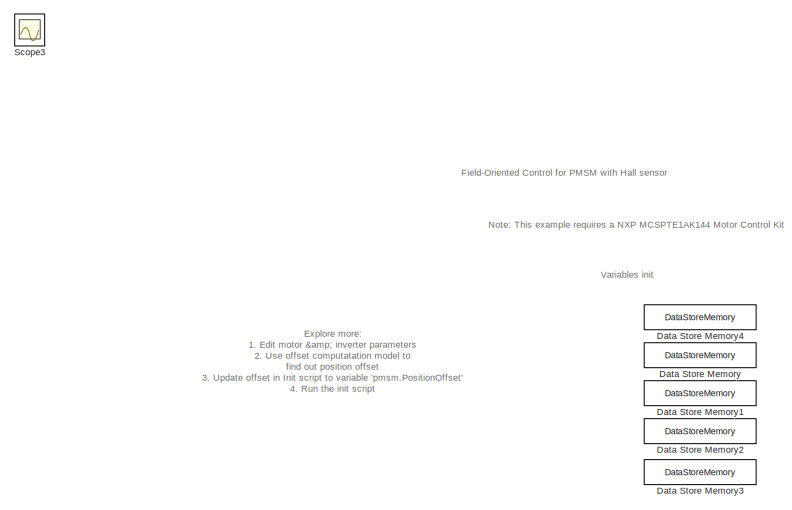
[diagram: root canvas - part 1/2, top left region]
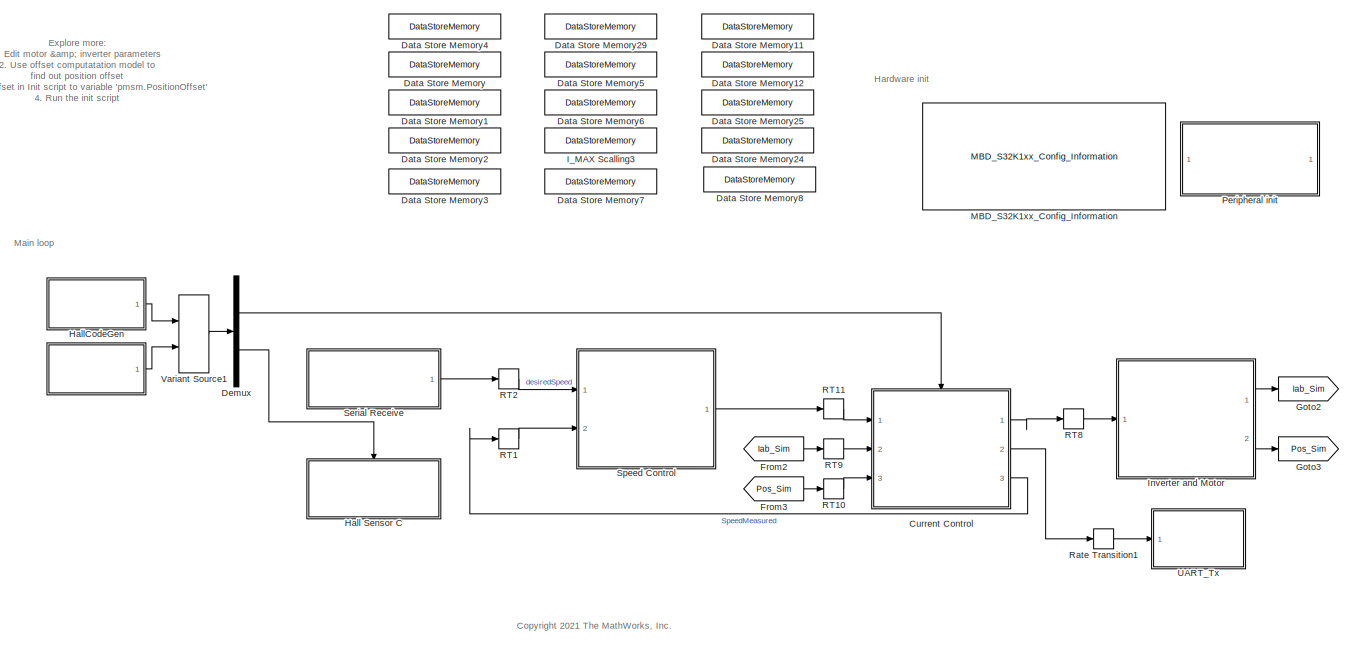
[diagram: root canvas - part 2/2, full width, middle band]
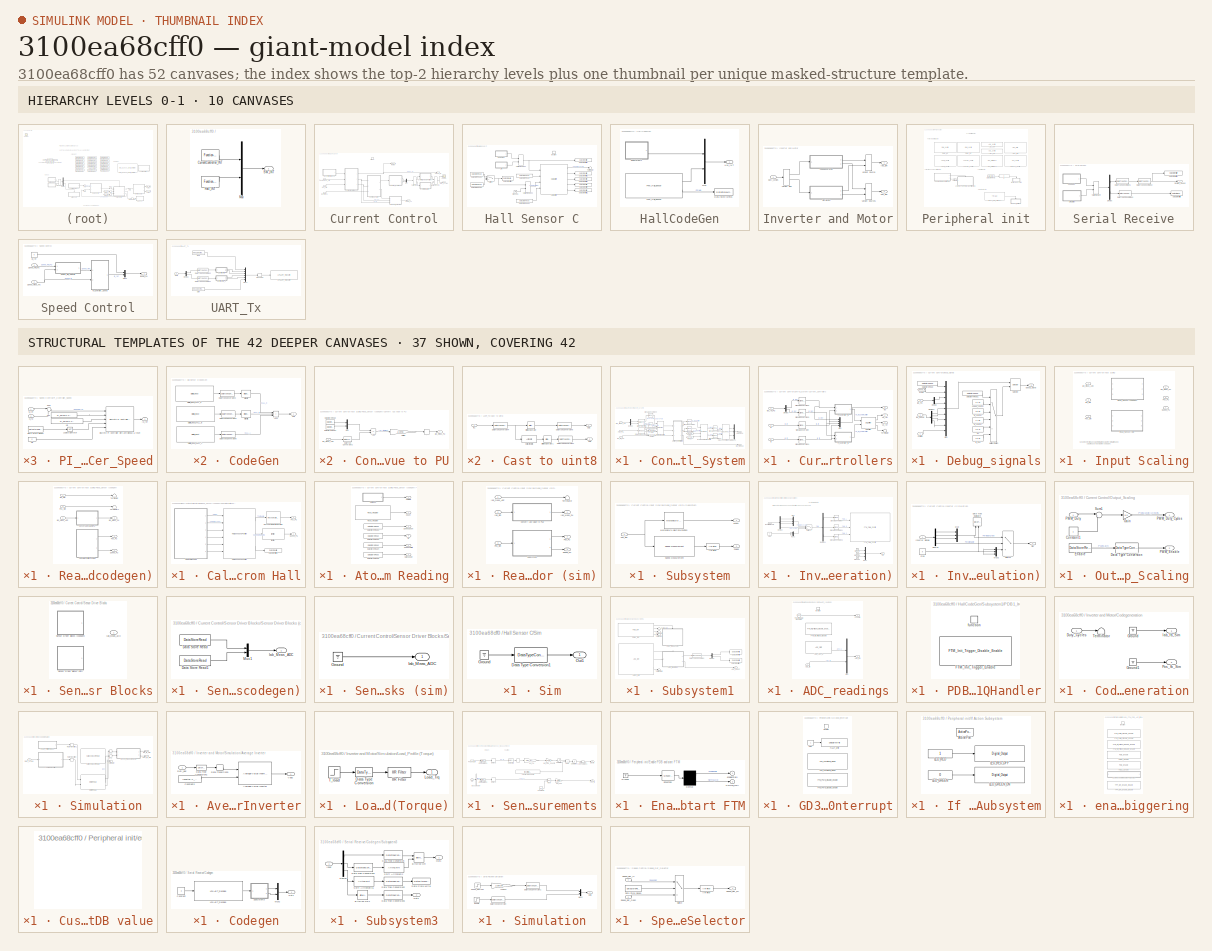
[diagram: thumbnail index - top-2 hierarchy levels (10 canvases) + 37 structural-template representatives of the remaining 42 canvases]
MODEL slx_3100ea68cff0
KIND model
CONFIG AbsTol = auto
CONFIG EnableMultiTasking = on
CONFIG FixedStep = auto
CONFIG InitFcn = mbd_s32k_consistency_checks(bdroot(gcs));
CONFIG MaxStep = auto
CONFIG MinStep = auto
CONFIG PreLoadFcn = mcb_pmsm_foc_hall_MCSPTE1AK144_data;
CONFIG RelTol = 1e-3
CONFIG SampleTimeConstraint = Unconstrained
CONFIG SolverName = FixedStepDiscrete
CONFIG StartTime = 0.0
CONFIG StopTime = 10
BLOCK [SubSystem]  
  Ports = [0, 1]
  RequestExecContextInheritance = off
BLOCK [Reference]  /CurrentController_INT  REF=simulink/Ports &
Subsystems/Function-Call
Generator
  Ports = [0, 1]
  SourceBlock = simulink/Ports &\nSubsystems/Function-Call\nGenerator
  SourceProductBaseCode = SL
  SourceType = Function-Call Generator
BLOCK [Reference]  /Hall_INT  REF=simulink/Ports &
Subsystems/Function-Call
Generator
  Ports = [0, 1]
  SourceBlock = simulink/Ports &\nSubsystems/Function-Call\nGenerator
  SourceProductBaseCode = SL
  SourceType = Function-Call Generator
BLOCK [Mux]  /Mux
  DisplayOption = bar
  Inputs = 2
  Ports = [2, 1]
BLOCK [Outport]  /SW_INT
BLOCK [SubSystem] Current Control
  Ports = [3, 3, 0, 1]
  RequestExecContextInheritance = off
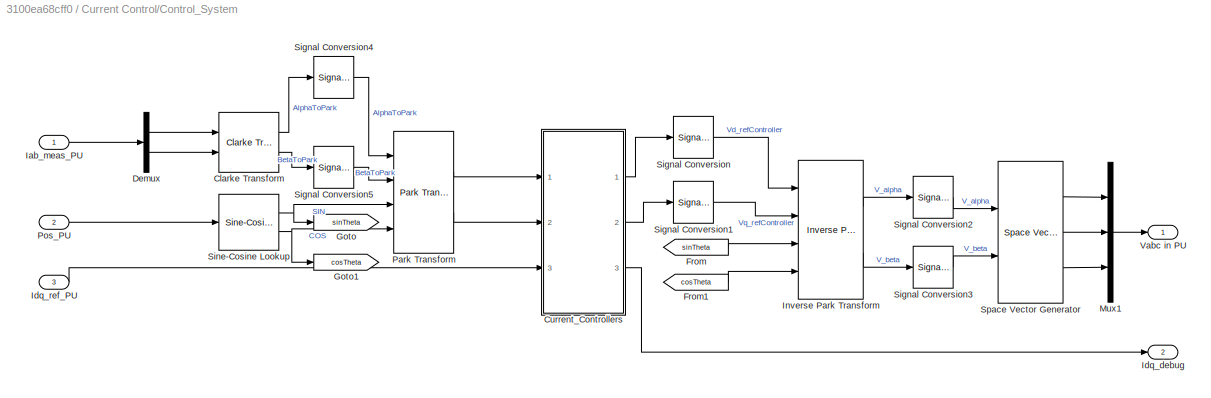
BLOCK [SubSystem] Current Control/Control_System
  Ports = [3, 2]
  Priority = 3
  RequestExecContextInheritance = off
BLOCK [Reference] Current Control/Control_System/Clarke Transform  REF=mcbcontrolslib/Clarke Transform
  Ports = [2, 2]
  SourceBlock = mcbcontrolslib/Clarke Transform
  SourceProductBaseCode = MT
  SourceType = Clarke Transform
BLOCK [SubSystem] Current Control/Control_System/Current_Controllers
  Ports = [3, 3]
  RequestExecContextInheritance = off
BLOCK [Reference] Current Control/Control_System/Current_Controllers/DQ Limiter  REF=mcbcontrolslib/DQ Limiter
  Ports = [2, 3]
  SourceBlock = mcbcontrolslib/DQ Limiter
  SourceProductBaseCode = MT
  SourceType = DQ Limiter
BLOCK [Demux] Current Control/Control_System/Current_Controllers/Demux
  Outputs = 2
  Ports = [1, 2]
BLOCK [Inport] Current Control/Control_System/Current_Controllers/Id
BLOCK [Outport] Current Control/Control_System/Current_Controllers/Idq
  Port = 3
  VectorParamsAs1DForOutWhenUnconnected = off
BLOCK [Inport] Current Control/Control_System/Current_Controllers/Idq_ref_PU
  Port = 3
BLOCK [Inport] Current Control/Control_System/Current_Controllers/Iq
  Port = 2
BLOCK [Mux] Current Control/Control_System/Current_Controllers/Mux
  DisplayOption = bar
  Ports = [4, 1]
BLOCK [SubSystem] Current Control/Control_System/Current_Controllers/PI_Controller_Id
  NameLocation = top
  Ports = [2, 1]
  RequestExecContextInheritance = off
BLOCK [DataStoreRead] Current Control/Control_System/Current_Controllers/PI_Controller_Id/Data Store Read1
  DataStoreName = Enable
  IndexOptions = Index vector (dialog)
  Indices = 1
  OutputSizes = 1
  Ports = [0, 1]
BLOCK [Reference] Current Control/Control_System/Current_Controllers/PI_Controller_Id/Discrete PI Controller with anti-windup & reset  REF=mcbcontrolslib/Discrete PI Controller 
with anti-windup & reset
  Ports = [5, 1]
  SourceBlock = mcbcontrolslib/Discrete PI Controller \nwith anti-windup & reset
  SourceProductBaseCode = MT
  SourceType = Discrete PI Controller with anti-windup and reset
BLOCK [Inport] Current Control/Control_System/Current_Controllers/PI_Controller_Id/I_fb
  Port = 2
BLOCK [Inport] Current Control/Control_System/Current_Controllers/PI_Controller_Id/I_ref
BLOCK [Constant] Current Control/Control_System/Current_Controllers/PI_Controller_Id/Ki
  OutDataTypeStr = dataType
  SampleTime = -1
  Value = PI_params.Ki_i*Ts
BLOCK [Constant] Current Control/Control_System/Current_Controllers/PI_Controller_Id/Ki1
  NameLocation = top
  OutDataTypeStr = dataType
  SampleTime = -1
  Value = 0
BLOCK [Constant] Current Control/Control_System/Current_Controllers/PI_Controller_Id/Kp
  NameLocation = top
  OutDataTypeStr = dataType
  SampleTime = -1
  Value = PI_params.Kp_i
BLOCK [Logic] Current Control/Control_System/Current_Controllers/PI_Controller_Id/Logical Operator
  AllPortsSameDT = off
  IconShape = distinctive
  Operator = NOT
  OutDataTypeStr = boolean
  Ports = [1, 1]
BLOCK [Sum] Current Control/Control_System/Current_Controllers/PI_Controller_Id/Sum
  AccumDataTypeStr = Inherit: Same as first input
  Inputs = |+-
  OutDataTypeStr = Inherit: Same as first input
  Ports = [2, 1]
BLOCK [Outport] Current Control/Control_System/Current_Controllers/PI_Controller_Id/V_ref
  VectorParamsAs1DForOutWhenUnconnected = off
BLOCK [SubSystem] Current Control/Control_System/Current_Controllers/PI_Controller_Iq
  NameLocation = top
  Ports = [2, 1]
  RequestExecContextInheritance = off
BLOCK [DataStoreRead] Current Control/Control_System/Current_Controllers/PI_Controller_Iq/Data Store Read1
  DataStoreName = Enable
  IndexOptions = Index vector (dialog)
  Indices = 1
  OutputSizes = 1
  Ports = [0, 1]
BLOCK [Reference] Current Control/Control_System/Current_Controllers/PI_Controller_Iq/Discrete PI Controller with anti-windup & reset  REF=mcbcontrolslib/Discrete PI Controller 
with anti-windup & reset
  Ports = [5, 1]
  SourceBlock = mcbcontrolslib/Discrete PI Controller \nwith anti-windup & reset
  SourceProductBaseCode = MT
  SourceType = Discrete PI Controller with anti-windup and reset
BLOCK [Inport] Current Control/Control_System/Current_Controllers/PI_Controller_Iq/I_fb
  Port = 2
BLOCK [Inport] Current Control/Control_System/Current_Controllers/PI_Controller_Iq/I_ref
BLOCK [Constant] Current Control/Control_System/Current_Controllers/PI_Controller_Iq/Ki
  OutDataTypeStr = dataType
  SampleTime = -1
  Value = PI_params.Ki_i*Ts
BLOCK [Constant] Current Control/Control_System/Current_Controllers/PI_Controller_Iq/Kp
  NameLocation = top
  OutDataTypeStr = dataType
  SampleTime = -1
  Value = PI_params.Kp_i
BLOCK [Constant] Current Control/Control_System/Current_Controllers/PI_Controller_Iq/Kp1
  NameLocation = top
  OutDataTypeStr = dataType
  SampleTime = -1
  Value = 0
BLOCK [Logic] Current Control/Control_System/Current_Controllers/PI_Controller_Iq/Logical Operator
  AllPortsSameDT = off
  IconShape = distinctive
  Operator = NOT
  OutDataTypeStr = boolean
  Ports = [1, 1]
BLOCK [Sum] Current Control/Control_System/Current_Controllers/PI_Controller_Iq/Sum
  AccumDataTypeStr = Inherit: Same as first input
  Inputs = |+-
  OutDataTypeStr = Inherit: Same as first input
  Ports = [2, 1]
BLOCK [Outport] Current Control/Control_System/Current_Controllers/PI_Controller_Iq/V_ref
  VectorParamsAs1DForOutWhenUnconnected = off
BLOCK [SignalConversion] Current Control/Control_System/Current_Controllers/Signal Conversion
  OverrideOpt = off
BLOCK [SignalConversion] Current Control/Control_System/Current_Controllers/Signal Conversion1
  OverrideOpt = off
BLOCK [SignalConversion] Current Control/Control_System/Current_Controllers/Signal Conversion2
  OverrideOpt = off
BLOCK [SignalConversion] Current Control/Control_System/Current_Controllers/Signal Conversion3
  OverrideOpt = off
BLOCK [Terminator] Current Control/Control_System/Current_Controllers/Terminator
BLOCK [Outport] Current Control/Control_System/Current_Controllers/Vd_ref
  VectorParamsAs1DForOutWhenUnconnected = off
BLOCK [Outport] Current Control/Control_System/Current_Controllers/Vq_ref
  Port = 2
  VectorParamsAs1DForOutWhenUnconnected = off
BLOCK [Demux] Current Control/Control_System/Demux
  Outputs = 2
  Ports = [1, 2]
BLOCK [From] Current Control/Control_System/From
  GotoTag = sinTheta
BLOCK [From] Current Control/Control_System/From1
  GotoTag = cosTheta
BLOCK [Goto] Current Control/Control_System/Goto
  GotoTag = sinTheta
BLOCK [Goto] Current Control/Control_System/Goto1
  GotoTag = cosTheta
BLOCK [Inport] Current Control/Control_System/Iab_meas_PU
BLOCK [Outport] Current Control/Control_System/Idq_debug
  Port = 2
  VectorParamsAs1DForOutWhenUnconnected = off
BLOCK [Inport] Current Control/Control_System/Idq_ref_PU
  Port = 3
BLOCK [Reference] Current Control/Control_System/Inverse Park Transform  REF=mcbcontrolslib/Inverse Park Transform
  Ports = [4, 2]
  SourceBlock = mcbcontrolslib/Inverse Park Transform
  SourceProductBaseCode = MT
  SourceType = Inverse Park Transform
BLOCK [Mux] Current Control/Control_System/Mux1
  DisplayOption = bar
  Inputs = 3
  Ports = [3, 1]
BLOCK [Reference] Current Control/Control_System/Park Transform  REF=mcbcontrolslib/Park Transform
  Ports = [4, 2]
  SourceBlock = mcbcontrolslib/Park Transform
  SourceProductBaseCode = MT
  SourceType = Park Transform
BLOCK [Inport] Current Control/Control_System/Pos_PU
  Port = 2
BLOCK [SignalConversion] Current Control/Control_System/Signal Conversion
  OverrideOpt = off
BLOCK [SignalConversion] Current Control/Control_System/Signal Conversion1
  OverrideOpt = off
BLOCK [SignalConversion] Current Control/Control_System/Signal Conversion2
  OverrideOpt = off
BLOCK [SignalConversion] Current Control/Control_System/Signal Conversion3
  OverrideOpt = off
BLOCK [SignalConversion] Current Control/Control_System/Signal Conversion4
  OverrideOpt = off
BLOCK [SignalConversion] Current Control/Control_System/Signal Conversion5
  OverrideOpt = off
BLOCK [Reference] Current Control/Control_System/Sine-Cosine Lookup  REF=mcbcontrolslib/Sine-Cosine Lookup
  Ports = [1, 2]
  SourceBlock = mcbcontrolslib/Sine-Cosine Lookup
  SourceProductBaseCode = MT
  SourceType = Sine-Cosine Lookup
BLOCK [Reference] Current Control/Control_System/Space Vector Generator  REF=mcbcontrolslib/Space Vector Generator
  Ports = [2, 3]
  SourceBlock = mcbcontrolslib/Space Vector Generator
  SourceProductBaseCode = MT
  SourceType = Space Vector Generator
BLOCK [Outport] Current Control/Control_System/Vabc in PU
  VectorParamsAs1DForOutWhenUnconnected = off
BLOCK [SubSystem] Current Control/Debug_signals
  Ports = [3, 1]
  RequestExecContextInheritance = off
BLOCK [DataStoreRead] Current Control/Debug_signals/Data Store Read
  DataStoreName = DesiredSpeed
  IndexOptions = Index vector (dialog)
  Indices = 1
  OutputSizes = 1
  Ports = [0, 1]
BLOCK [DataStoreRead] Current Control/Debug_signals/Data Store Read1
  DataStoreName = Debug_Signal
  IndexOptions = Index vector (dialog)
  Indices = 1
  OutputSizes = 1
  Ports = [0, 1]
BLOCK [Outport] Current Control/Debug_signals/Debug_signal
BLOCK [Demux] Current Control/Debug_signals/Demux
  Outputs = 2
  Ports = [1, 2]
BLOCK [Demux] Current Control/Debug_signals/Demux1
  Ports = [1, 4]
BLOCK [From] Current Control/Debug_signals/From
  GotoTag = Speed_fb
  TagVisibility = global
BLOCK [Constant] Current Control/Debug_signals/Ia_Pos
  OutDataTypeStr = uint16
  SampleTime = -1
  Value = [3 9]
BLOCK [Constant] Current Control/Debug_signals/Iab
  OutDataTypeStr = uint16
  SampleTime = -1
  Value = [3 4]
BLOCK [Inport] Current Control/Debug_signals/Iab_PU
  Port = 3
BLOCK [Constant] Current Control/Debug_signals/Id_control
  OutDataTypeStr = uint16
  SampleTime = -1
  Value = [5 6]
BLOCK [Inport] Current Control/Debug_signals/Idq_debug
BLOCK [Constant] Current Control/Debug_signals/Iq_control
  OutDataTypeStr = uint16
  SampleTime = -1
  Value = [7 8]
BLOCK [MultiPortSwitch] Current Control/Debug_signals/Multiport Switch
  DiagnosticForDefault = Warning
  InputSameDT = off
  Inputs = 5
  OutDataTypeStr = uint16
  Ports = [6, 1]
  RndMeth = Simplest
  SaturateOnIntegerOverflow = off
BLOCK [Mux] Current Control/Debug_signals/Mux
  DisplayOption = bar
  Inputs = 9
  Ports = [9, 1]
BLOCK [Inport] Current Control/Debug_signals/Position
  Port = 2
BLOCK [Selector] Current Control/Debug_signals/Selector
  IndexOptions = Index vector (port)
  Indices = [1 3]
  InputPortWidth = 9
  OutputSizes = 1
  Ports = [2, 1]
BLOCK [Constant] Current Control/Debug_signals/speed_control
  OutDataTypeStr = uint16
  SampleTime = -1
  Value = [1 2]
BLOCK [Outport] Current Control/Duty_Cycles
  InitialOutput = 0
  VectorParamsAs1DForOutWhenUnconnected = off
BLOCK [Inport] Current Control/Feedbacks_sim
  Port = 2
BLOCK [Goto] Current Control/Goto1
  GotoTag = Speed_fb
  TagVisibility = global
BLOCK [Inport] Current Control/Idq_ref_PU
BLOCK [SubSystem] Current Control/Input Scaling
  Ports = [3, 3]
  Priority = 2
  PropagateVariantConditions = on
  RequestExecContextInheritance = off
  Variant = on
  VariantControl = Variant1
  VariantControlMode = sim codegen switching
BLOCK [Outport] Current Control/Input Scaling/Iab_Meas_PU
  Port = 2
  VectorParamsAs1DForOutWhenUnconnected = off
BLOCK [Inport] Current Control/Input Scaling/Iab_Sim
  Port = 2
BLOCK [Inport] Current Control/Input Scaling/Iab_meas_ADC
BLOCK [Outport] Current Control/Input Scaling/Pos_PU
  Port = 3
  VectorParamsAs1DForOutWhenUnconnected = off
BLOCK [Inport] Current Control/Input Scaling/Pos_Sim
  Port = 3
BLOCK [SubSystem] Current Control/Input Scaling/Read_Sensor (codegen)
  Ports = [3, 3]
  RequestExecContextInheritance = off
  VariantControl = (codegen)
BLOCK [SubSystem] Current Control/Input Scaling/Read_Sensor (codegen)/Calculate Position from Hall
  Ports = [0, 2]
  RequestExecContextInheritance = off
BLOCK [SubSystem] Current Control/Input Scaling/Read_Sensor (codegen)/Calculate Position from Hall/Atomic Hall Reading
  Ports = [0, 6]
  RequestExecContextInheritance = off
  TreatAsAtomicUnit = on
BLOCK [Outport] Current Control/Input Scaling/Read_Sensor (codegen)/Calculate Position from Hall/Atomic Hall Reading/Count
  Port = 2
BLOCK [DataStoreRead] Current Control/Input Scaling/Read_Sensor (codegen)/Calculate Position from Hall/Atomic Hall Reading/Data Store Read2
  DataStoreName = GlobalSpeedCount
  IndexOptions = Index vector (dialog)
  Indices = 1
  OutputSizes = 1
  Ports = [0, 1]
BLOCK [DataStoreRead] Current Control/Input Scaling/Read_Sensor (codegen)/Calculate Position from Hall/Atomic Hall Reading/Data Store Read3
  DataStoreName = GlobalDirection
  IndexOptions = Index vector (dialog)
  Indices = 1
  OutputSizes = 1
  Ports = [0, 1]
BLOCK [DataStoreRead] Current Control/Input Scaling/Read_Sensor (codegen)/Calculate Position from Hall/Atomic Hall Reading/Data Store Read4
  DataStoreName = GlobalSpeedValidity
  IndexOptions = Index vector (dialog)
  Indices = 1
  OutputSizes = 1
  Ports = [0, 1]
BLOCK [DataStoreRead] Current Control/Input Scaling/Read_Sensor (codegen)/Calculate Position from Hall/Atomic Hall Reading/Data Store Read5
  DataStoreName = HallStateChangeFlag
  IndexOptions = Index vector (dialog)
  Indices = 1
  OutputSizes = 1
  Ports = [0, 1]
  Priority = 1
BLOCK [Outport] Current Control/Input Scaling/Read_Sensor (codegen)/Calculate Position from Hall/Atomic Hall Reading/Dir
  Port = 4
BLOCK [SubSystem] Current Control/Input Scaling/Read_Sensor (codegen)/Calculate Position from Hall/Atomic Hall Reading/Hall Read
  Ports = [0, 1]
  RequestExecContextInheritance = off
BLOCK [Sum] Current Control/Input Scaling/Read_Sensor (codegen)/Calculate Position from Hall/Atomic Hall Reading/Hall Read/Add1
  IconShape = rectangular
  Inputs = +++
  OutDataTypeStr = Inherit: Inherit via back propagation
  Ports = [3, 1]
BLOCK [Reference] Current Control/Input Scaling/Read_Sensor (codegen)/Calculate Position from Hall/Atomic Hall Reading/Hall Read/Bit Shift  REF=hdlsllib/Logic and Bit
Operations/Bit Shift
  Ports = [1, 1]
  SourceBlock = hdlsllib/Logic and Bit\nOperations/Bit Shift
  SourceProductBaseCode = SL
  SourceType = Bit Shift
BLOCK [Reference] Current Control/Input Scaling/Read_Sensor (codegen)/Calculate Position from Hall/Atomic Hall Reading/Hall Read/Bit Shift1  REF=hdlsllib/Logic and Bit
Operations/Bit Shift
  Ports = [1, 1]
  SourceBlock = hdlsllib/Logic and Bit\nOperations/Bit Shift
  SourceProductBaseCode = SL
  SourceType = Bit Shift
BLOCK [DataTypeConversion] Current Control/Input Scaling/Read_Sensor (codegen)/Calculate Position from Hall/Atomic Hall Reading/Hall Read/Data Type Conversion2
  OutDataTypeStr = uint32
  RndMeth = Floor
  SaturateOnIntegerOverflow = off
BLOCK [DataTypeConversion] Current Control/Input Scaling/Read_Sensor (codegen)/Calculate Position from Hall/Atomic Hall Reading/Hall Read/Data Type Conversion3
  OutDataTypeStr = uint32
  RndMeth = Floor
  SaturateOnIntegerOverflow = off
BLOCK [DataTypeConversion] Current Control/Input Scaling/Read_Sensor (codegen)/Calculate Position from Hall/Atomic Hall Reading/Hall Read/Data Type Conversion6
  OutDataTypeStr = uint32
  RndMeth = Floor
  SaturateOnIntegerOverflow = off
BLOCK [Reference] Current Control/Input Scaling/Read_Sensor (codegen)/Calculate Position from Hall/Atomic Hall Reading/Hall Read/Digital_Input_HALL_A  REF=mbd_s32k1xx_ec_toolbox/GPIO Blocks/Digital_Input
  Ports = [0, 1]
  SourceBlock = mbd_s32k1xx_ec_toolbox/GPIO Blocks/Digital_Input
  SourceType = gpio_s32k_input
BLOCK [Reference] Current Control/Input Scaling/Read_Sensor (codegen)/Calculate Position from Hall/Atomic Hall Reading/Hall Read/Digital_Input_HALL_B  REF=mbd_s32k1xx_ec_toolbox/GPIO Blocks/Digital_Input
  Ports = [0, 1]
  SourceBlock = mbd_s32k1xx_ec_toolbox/GPIO Blocks/Digital_Input
  SourceType = gpio_s32k_input
BLOCK [Reference] Current Control/Input Scaling/Read_Sensor (codegen)/Calculate Position from Hall/Atomic Hall Reading/Hall Read/Digital_Input_HALL_C  REF=mbd_s32k1xx_ec_toolbox/GPIO Blocks/Digital_Input
  Ports = [0, 1]
  SourceBlock = mbd_s32k1xx_ec_toolbox/GPIO Blocks/Digital_Input
  SourceType = gpio_s32k_input
BLOCK [Outport] Current Control/Input Scaling/Read_Sensor (codegen)/Calculate Position from Hall/Atomic Hall Reading/Hall Read/Out1
BLOCK [Outport] Current Control/Input Scaling/Read_Sensor (codegen)/Calculate Position from Hall/Atomic Hall Reading/HallState
BLOCK [Outport] Current Control/Input Scaling/Read_Sensor (codegen)/Calculate Position from Hall/Atomic Hall Reading/Hallchange
  Port = 6
BLOCK [Reference] Current Control/Input Scaling/Read_Sensor (codegen)/Calculate Position from Hall/Atomic Hall Reading/Read_Register  REF=mbd_s32k1xx_ec_toolbox/Utility Blocks/Read_Register
  Ports = [0, 1]
  SourceBlock = mbd_s32k1xx_ec_toolbox/Utility Blocks/Read_Register
  SourceType = register_s32k_read
BLOCK [Outport] Current Control/Input Scaling/Read_Sensor (codegen)/Calculate Position from Hall/Atomic Hall Reading/SpeedCount
  Port = 3
BLOCK [Outport] Current Control/Input Scaling/Read_Sensor (codegen)/Calculate Position from Hall/Atomic Hall Reading/SpeedValidity
  Port = 5
BLOCK [DataStoreWrite] Current Control/Input Scaling/Read_Sensor (codegen)/Calculate Position from Hall/Data Store Write2
  DataStoreName = HallStateChangeFlag
  IndexOptions = Index vector (dialog)
  Indices = 1
  OutputSizes = 1
  Ports = [1]
  Priority = 2
BLOCK [Reference] Current Control/Input Scaling/Read_Sensor (codegen)/Calculate Position from Hall/Hall Speed and Position  REF=mcbpositiondecoderlib/Hall Speed and Position
  Ports = [6, 3]
  SourceBlock = mcbpositiondecoderlib/Hall Speed and Position
  SourceProductBaseCode = MT
  SourceType = Hall Speed and Position
BLOCK [Reference] Current Control/Input Scaling/Read_Sensor (codegen)/Calculate Position from Hall/IIR Filter  REF=mcbcontrolslib/IIR Filter
  Ports = [1, 1]
  SourceBlock = mcbcontrolslib/IIR Filter
  SourceProductBaseCode = MT
  SourceType = IIR Filter
BLOCK [Reference] Current Control/Input Scaling/Read_Sensor (codegen)/Calculate Position from Hall/Mechanical to Electrical Position  REF=mcbpositiondecoderlib/Mechanical to Electrical Position
  Ports = [1, 1]
  SourceBlock = mcbpositiondecoderlib/Mechanical to Electrical Position
  SourceProductBaseCode = MT
  SourceType = Mechanical to Electrical Position
BLOCK [Outport] Current Control/Input Scaling/Read_Sensor (codegen)/Calculate Position from Hall/Pos_PU
  InitialOutput = 0
  VectorParamsAs1DForOutWhenUnconnected = off
BLOCK [Outport] Current Control/Input Scaling/Read_Sensor (codegen)/Calculate Position from Hall/Speed_PU
  InitialOutput = 0
  Port = 2
  VectorParamsAs1DForOutWhenUnconnected = off
BLOCK [SubSystem] Current Control/Input Scaling/Read_Sensor (codegen)/Convert ADC value to PU
  Ports = [1, 1]
  RequestExecContextInheritance = off
BLOCK [UnaryMinus] Current Control/Input Scaling/Read_Sensor (codegen)/Convert ADC value to PU/.
BLOCK [Sum] Current Control/Input Scaling/Read_Sensor (codegen)/Convert ADC value to PU/Add
  IconShape = rectangular
  Inputs = -+
  Ports = [2, 1]
BLOCK [DataStoreRead] Current Control/Input Scaling/Read_Sensor (codegen)/Convert ADC value to PU/Data Store Read
  DataStoreName = IaOffset
  IndexOptions = Index vector (dialog)
  Indices = 1
  OutputSizes = 1
  Ports = [0, 1]
BLOCK [DataStoreRead] Current Control/Input Scaling/Read_Sensor (codegen)/Convert ADC value to PU/Data Store Read1
  DataStoreName = IbOffset
  IndexOptions = Index vector (dialog)
  Indices = 1
  OutputSizes = 1
  Ports = [0, 1]
BLOCK [DataTypeConversion] Current Control/Input Scaling/Read_Sensor (codegen)/Convert ADC value to PU/Data Type Conversion2
  OutDataTypeStr = dataType
  RndMeth = Simplest
  SaturateOnIntegerOverflow = off
BLOCK [Inport] Current Control/Input Scaling/Read_Sensor (codegen)/Convert ADC value to PU/Iab_meas_ADC
BLOCK [Outport] Current Control/Input Scaling/Read_Sensor (codegen)/Convert ADC value to PU/Iab_meas_PU
  InitialOutput = 0
  VectorParamsAs1DForOutWhenUnconnected = off
BLOCK [Gain] Current Control/Input Scaling/Read_Sensor (codegen)/Convert ADC value to PU/Multiply
  Gain = 1/2048
  RndMeth = Simplest
BLOCK [Mux] Current Control/Input Scaling/Read_Sensor (codegen)/Convert ADC value to PU/Mux
  DisplayOption = bar
  Inputs = 2
  Ports = [2, 1]
BLOCK [Outport] Current Control/Input Scaling/Read_Sensor (codegen)/Iab_Meas_PU
  VectorParamsAs1DForOutWhenUnconnected = off
BLOCK [Inport] Current Control/Input Scaling/Read_Sensor (codegen)/Iab_Sim
  Port = 2
BLOCK [Inport] Current Control/Input Scaling/Read_Sensor (codegen)/Iab_meas_ADC
BLOCK [Outport] Current Control/Input Scaling/Read_Sensor (codegen)/Pos_PU
  Port = 2
  VectorParamsAs1DForOutWhenUnconnected = off
BLOCK [Inport] Current Control/Input Scaling/Read_Sensor (codegen)/Pos_Sim
  Port = 3
BLOCK [Outport] Current Control/Input Scaling/Read_Sensor (codegen)/Speed_PU
  Port = 3
  VectorParamsAs1DForOutWhenUnconnected = off
BLOCK [Terminator] Current Control/Input Scaling/Read_Sensor (codegen)/Terminator
BLOCK [Terminator] Current Control/Input Scaling/Read_Sensor (codegen)/Terminator1
BLOCK [SubSystem] Current Control/Input Scaling/Read_Sensor (sim)
  Ports = [3, 3]
  RequestExecContextInheritance = off
  VariantControl = (sim)
BLOCK [SubSystem] Current Control/Input Scaling/Read_Sensor (sim)/Convert ADC value to PU2
  Ports = [1, 1]
  RequestExecContextInheritance = off
BLOCK [UnaryMinus] Current Control/Input Scaling/Read_Sensor (sim)/Convert ADC value to PU2/.1
BLOCK [Sum] Current Control/Input Scaling/Read_Sensor (sim)/Convert ADC value to PU2/Add
  IconShape = rectangular
  Inputs = -+
  OutDataTypeStr = int32
  Ports = [2, 1]
  RndMeth = Simplest
BLOCK [DataStoreRead] Current Control/Input Scaling/Read_Sensor (sim)/Convert ADC value to PU2/Data Store Read
  DataStoreName = IaOffset
  IndexOptions = Index vector (dialog)
  Indices = 1
  OutputSizes = 1
  Ports = [0, 1]
BLOCK [DataStoreRead] Current Control/Input Scaling/Read_Sensor (sim)/Convert ADC value to PU2/Data Store Read1
  DataStoreName = IbOffset
  IndexOptions = Index vector (dialog)
  Indices = 1
  OutputSizes = 1
  Ports = [0, 1]
BLOCK [DataTypeConversion] Current Control/Input Scaling/Read_Sensor (sim)/Convert ADC value to PU2/Data Type Conversion1
  OutDataTypeStr = dataType
  RndMeth = Simplest
  SaturateOnIntegerOverflow = off
BLOCK [Inport] Current Control/Input Scaling/Read_Sensor (sim)/Convert ADC value to PU2/Iab_meas_ADC
BLOCK [Outport] Current Control/Input Scaling/Read_Sensor (sim)/Convert ADC value to PU2/Iab_meas_PU
  InitialOutput = 0
  VectorParamsAs1DForOutWhenUnconnected = off
BLOCK [Gain] Current Control/Input Scaling/Read_Sensor (sim)/Convert ADC value to PU2/Multiply
  Gain = 1/2048
  OutDataTypeStr = dataType
  RndMeth = Simplest
BLOCK [Mux] Current Control/Input Scaling/Read_Sensor (sim)/Convert ADC value to PU2/Mux
  DisplayOption = bar
  Inputs = 2
  Ports = [2, 1]
BLOCK [Outport] Current Control/Input Scaling/Read_Sensor (sim)/Iab_Meas_PU
  VectorParamsAs1DForOutWhenUnconnected = off
BLOCK [Inport] Current Control/Input Scaling/Read_Sensor (sim)/Iab_Sim
  Port = 2
BLOCK [Inport] Current Control/Input Scaling/Read_Sensor (sim)/Iab_meas_ADC
  OutDataTypeStr = uint16
BLOCK [Outport] Current Control/Input Scaling/Read_Sensor (sim)/Pos_PU
  Port = 2
  VectorParamsAs1DForOutWhenUnconnected = off
BLOCK [Inport] Current Control/Input Scaling/Read_Sensor (sim)/Pos_Sim
  Port = 3
BLOCK [Outport] Current Control/Input Scaling/Read_Sensor (sim)/Speed_PU
  Port = 3
  VectorParamsAs1DForOutWhenUnconnected = off
BLOCK [SubSystem] Current Control/Input Scaling/Read_Sensor (sim)/Subsystem
  Ports = [1, 2]
  RequestExecContextInheritance = off
BLOCK [Reference] Current Control/Input Scaling/Read_Sensor (sim)/Subsystem/IIR Filter  REF=mcbcontrolslib/IIR Filter
  Ports = [1, 1]
  SourceBlock = mcbcontrolslib/IIR Filter
  SourceProductBaseCode = MT
  SourceType = IIR Filter
BLOCK [Reference] Current Control/Input Scaling/Read_Sensor (sim)/Subsystem/Mechanical to Electrical Position  REF=mcbpositiondecoderlib/Mechanical to Electrical Position
  Ports = [1, 1]
  SourceBlock = mcbpositiondecoderlib/Mechanical to Electrical Position
  SourceProductBaseCode = MT
  SourceType = Mechanical to Electrical Position
BLOCK [Inport] Current Control/Input Scaling/Read_Sensor (sim)/Subsystem/Pos_Sim
BLOCK [Outport] Current Control/Input Scaling/Read_Sensor (sim)/Subsystem/Speed
  Port = 2
BLOCK [Reference] Current Control/Input Scaling/Read_Sensor (sim)/Subsystem/Speed Measurement  REF=mcbpositiondecoderlib/Speed Measurement
  Ports = [1, 1]
  SourceBlock = mcbpositiondecoderlib/Speed Measurement
  SourceProductBaseCode = MT
  SourceType = Speed Measurement
BLOCK [Outport] Current Control/Input Scaling/Read_Sensor (sim)/Subsystem/Theta
BLOCK [Terminator] Current Control/Input Scaling/Read_Sensor (sim)/Terminator
BLOCK [Outport] Current Control/Input Scaling/Speed_PU
  VectorParamsAs1DForOutWhenUnconnected = off
BLOCK [SubSystem] Current Control/Inverter (Code Generation)
  Ports = [1, 1]
  Priority = 5
  RequestExecContextInheritance = off
BLOCK [Demux] Current Control/Inverter (Code Generation)/Demux
  Ports = [1, 4]
BLOCK [Demux] Current Control/Inverter (Code Generation)/Demux1
  Outputs = 3
  Ports = [1, 3]
BLOCK [Reference] Current Control/Inverter (Code Generation)/FTM_PWM_Config  REF=mbd_s32k1xx_ec_toolbox/Motor Control Blocks/FTM Blocks/FTM_PWM_Config
  Ports = [3]
  SourceBlock = mbd_s32k1xx_ec_toolbox/Motor Control Blocks/FTM Blocks/FTM_PWM_Config
  SourceType = FTM_s32k_pwm_config_block
BLOCK [Ground] Current Control/Inverter (Code Generation)/Ground
BLOCK [Ground] Current Control/Inverter (Code Generation)/Ground1
BLOCK [Ground] Current Control/Inverter (Code Generation)/Ground2
BLOCK [Inport] Current Control/Inverter (Code Generation)/Inverter Signals
BLOCK [Mux] Current Control/Inverter (Code Generation)/Mux
  DisplayOption = bar
  Inputs = 3
  Ports = [3, 1]
BLOCK [Mux] Current Control/Inverter (Code Generation)/Mux1
  DisplayOption = bar
  Inputs = 3
  Ports = [3, 1]
BLOCK [Mux] Current Control/Inverter (Code Generation)/Mux2
  DisplayOption = bar
  Inputs = 3
  Ports = [3, 1]
BLOCK [SignalConversion] Current Control/Inverter (Code Generation)/Signal Conversion
  OverrideOpt = off
BLOCK [SignalConversion] Current Control/Inverter (Code Generation)/Signal Conversion1
  OverrideOpt = off
BLOCK [SignalConversion] Current Control/Inverter (Code Generation)/Signal Conversion2
  OverrideOpt = off
BLOCK [Outport] Current Control/Inverter (Code Generation)/Sim
  VectorParamsAs1DForOutWhenUnconnected = off
BLOCK [Switch] Current Control/Inverter (Code Generation)/Switch1
  InputSameDT = off
  SaturateOnIntegerOverflow = off
  Threshold = 0.5
BLOCK [Constant] Current Control/Inverter (Code Generation)/stop
  OutDataTypeStr = Inherit: Inherit via back propagation
  Value = 0
BLOCK [SubSystem] Current Control/Inverter (Simulation)
  Ports = [1, 1]
  RequestExecContextInheritance = off
BLOCK [DataTypeDuplicate] Current Control/Inverter (Simulation)/Data Type Duplicate
  Ports = [2]
BLOCK [Demux] Current Control/Inverter (Simulation)/Demux
  Ports = [1, 4]
BLOCK [Inport] Current Control/Inverter (Simulation)/Inverter Signals
BLOCK [Mux] Current Control/Inverter (Simulation)/Mux
  DisplayOption = bar
  Inputs = 3
  Ports = [3, 1]
BLOCK [Mux] Current Control/Inverter (Simulation)/Mux2
  DisplayOption = bar
  Inputs = 3
  Ports = [3, 1]
BLOCK [Outport] Current Control/Inverter (Simulation)/Sim
  VectorParamsAs1DForOutWhenUnconnected = off
BLOCK [Switch] Current Control/Inverter (Simulation)/Switch1
  InputSameDT = off
  RndMeth = Simplest
  SaturateOnIntegerOverflow = off
  Threshold = 0.5
BLOCK [Constant] Current Control/Inverter (Simulation)/stop
  OutDataTypeStr = Inherit: Inherit via back propagation
  Value = 0
BLOCK [Mux] Current Control/Mux
  DisplayOption = bar
  Inputs = 2
  Ports = [2, 1]
BLOCK [SubSystem] Current Control/Output_Scaling
  Ports = [1, 2]
  Priority = 4
  RequestExecContextInheritance = off
BLOCK [Constant] Current Control/Output_Scaling/Constant1
  OutDataTypeStr = Inherit: Inherit via back propagation
BLOCK [DataTypeConversion] Current Control/Output_Scaling/Data Type Conversion
  OutDataTypeStr = dataType
  RndMeth = Floor
  SaturateOnIntegerOverflow = off
BLOCK [DataStoreRead] Current Control/Output_Scaling/Enable
  DataStoreName = Enable
  IndexOptions = Index vector (dialog)
  Indices = 1
  OutputSizes = 1
  Ports = [0, 1]
BLOCK [Gain] Current Control/Output_Scaling/Gain
  Gain = 0.5
  OutDataTypeStr = Inherit: Inherit via back propagation
  RndMeth = Simplest
BLOCK [Inport] Current Control/Output_Scaling/PWM_Duty
BLOCK [Outport] Current Control/Output_Scaling/PWM_Duty_Cycles
BLOCK [Outport] Current Control/Output_Scaling/PWM_Enable
  Port = 2
BLOCK [Sum] Current Control/Output_Scaling/Sum1
  AccumDataTypeStr = Inherit: Same as first input
  Inputs = |++
  Ports = [2, 1]
  RndMeth = Simplest
BLOCK [Inport] Current Control/Pos_Sim
  Port = 3
BLOCK [Scope] Current Control/Scope
  Floating = off
  NumInputPorts = 1
  Ports = [1]
  ScopeSpecificationString = Simulink.scopes.TimeScopeBlockCfg('CurrentConfiguration', extmgr.ConfigurationSet(extmgr.Configuration('Core','General UI',true),extmgr.Configuration('Core','Source UI',true),extmgr.Configuration('Sources','WiredSimulink',true,'DataLoggingVariableName','ScopeData4'),extmgr.Configuration('Visuals','Time Domain',true,'SerializedDisplays',{struct('MinYLimReal','0.10795','MaxYLimReal','0.94231','YLabe...<+1902ch>
BLOCK [SubSystem] Current Control/Sensor Driver Blocks
  Ports = [0, 1]
  RequestExecContextInheritance = off
  Variant = on
  VariantControlMode = sim codegen switching
BLOCK [Outport] Current Control/Sensor Driver Blocks/Iab_Meas_ADC
BLOCK [SubSystem] Current Control/Sensor Driver Blocks/Sensor Driver Blocks (codegen)
  Ports = [0, 1]
  RequestExecContextInheritance = off
  VariantControl = (codegen)
BLOCK [DataStoreRead] Current Control/Sensor Driver Blocks/Sensor Driver Blocks (codegen)/Data Store Read
  DataStoreName = ADC_A
  IndexOptions = Index vector (dialog)
  Indices = 1
  OutputSizes = 1
  Ports = [0, 1]
BLOCK [DataStoreRead] Current Control/Sensor Driver Blocks/Sensor Driver Blocks (codegen)/Data Store Read1
  DataStoreName = ADC_B
  IndexOptions = Index vector (dialog)
  Indices = 1
  OutputSizes = 1
  Ports = [0, 1]
BLOCK [Outport] Current Control/Sensor Driver Blocks/Sensor Driver Blocks (codegen)/Iab_Meas_ADC
BLOCK [Mux] Current Control/Sensor Driver Blocks/Sensor Driver Blocks (codegen)/Mux1
  DisplayOption = bar
  Inputs = 2
  Ports = [2, 1]
BLOCK [SubSystem] Current Control/Sensor Driver Blocks/Sensor Driver Blocks (sim)
  Ports = [0, 1]
  RequestExecContextInheritance = off
  VariantControl = (sim)
BLOCK [Ground] Current Control/Sensor Driver Blocks/Sensor Driver Blocks (sim)/Ground
BLOCK [Outport] Current Control/Sensor Driver Blocks/Sensor Driver Blocks (sim)/Iab_Meas_ADC
BLOCK [Outport] Current Control/Speed_fb
  InitialOutput = 0
  Port = 3
  VectorParamsAs1DForOutWhenUnconnected = off
BLOCK [TriggerPort] Current Control/Trigger
  Ports = []
  StatesWhenEnabling = held
  TriggerType = function-call
  VariantControl = Variant
BLOCK [Outport] Current Control/UART_TX
  Port = 2
BLOCK [VariantSink] Current Control/Variant Sink
  Ports = [1, 2]
  VariantControlMode = sim codegen switching
BLOCK [VariantSource] Current Control/Variant Source
  Ports = [2, 1]
  VariantControlMode = sim codegen switching
BLOCK [DataStoreMemory] Data Store Memory
  DataStoreName = HallStateChangeFlag
  OutDataTypeStr = uint16
  ShowAdditionalParam = off
BLOCK [DataStoreMemory] Data Store Memory1
  DataStoreName = GlobalSpeedCount
  OutDataTypeStr = uint16
  ShowAdditionalParam = off
BLOCK [DataStoreMemory] Data Store Memory11
  DataStoreName = ADC_A
  ShowAdditionalParam = off
BLOCK [DataStoreMemory] Data Store Memory12
  DataStoreName = ADC_B
  ShowAdditionalParam = off
BLOCK [DataStoreMemory] Data Store Memory2
  DataStoreName = GlobalSpeedValidity
  OutDataTypeStr = uint16
  ShowAdditionalParam = off
BLOCK [DataStoreMemory] Data Store Memory24
  DataStoreName = HallCntPrev
  OutDataTypeStr = uint16
  ReadBeforeWriteMsg = warning
  ShowAdditionalParam = off
  WriteAfterReadMsg = warning
  WriteAfterWriteMsg = warning
BLOCK [DataStoreMemory] Data Store Memory25
  DataStoreName = HallCntActual
  OutDataTypeStr = uint16
  ReadBeforeWriteMsg = warning
  ShowAdditionalParam = off
  WriteAfterReadMsg = warning
  WriteAfterWriteMsg = warning
BLOCK [DataStoreMemory] Data Store Memory29
  DataStoreName = Enable
  OutDataTypeStr = boolean
  ShowAdditionalParam = off
BLOCK [DataStoreMemory] Data Store Memory3
  DataStoreName = GlobalDirection
  OutDataTypeStr = int16
  ShowAdditionalParam = off
BLOCK [DataStoreMemory] Data Store Memory4
  DataStoreName = GlobalHallState
  OutDataTypeStr = uint32
  ShowAdditionalParam = off
BLOCK [DataStoreMemory] Data Store Memory5
  DataStoreName = IaOffset
  InitialValue = inverter.CtSensAOffset
  OutDataTypeStr = single
  ShowAdditionalParam = off
BLOCK [DataStoreMemory] Data Store Memory6
  DataStoreName = IbOffset
  InitialValue = inverter.CtSensBOffset
  OutDataTypeStr = single
  ShowAdditionalParam = off
BLOCK [DataStoreMemory] Data Store Memory7
  DataStoreName = DesiredSpeed
  OutDataTypeStr = dataType
  ReadBeforeWriteMsg = warning
  ShowAdditionalParam = off
  WriteAfterReadMsg = warning
  WriteAfterWriteMsg = warning
BLOCK [DataStoreMemory] Data Store Memory8
  DataStoreName = Debug_Signal
  ReadBeforeWriteMsg = warning
  ShowAdditionalParam = off
  WriteAfterReadMsg = warning
  WriteAfterWriteMsg = warning
BLOCK [Demux] Demux
  Outputs = 2
  Ports = [1, 2]
BLOCK [From] From2
  GotoTag = Iab_Sim
BLOCK [From] From3
  GotoTag = Pos_Sim
BLOCK [Goto] Goto2
  GotoTag = Iab_Sim
BLOCK [Goto] Goto3
  GotoTag = Pos_Sim
BLOCK [SubSystem] Hall Sensor C
  Ports = [0, 0, 0, 1]
  RequestExecContextInheritance = off
BLOCK [SubSystem] Hall Sensor C/CodeGen
  Ports = [0, 1]
  RequestExecContextInheritance = off
BLOCK [Sum] Hall Sensor C/CodeGen/Add1
  IconShape = rectangular
  Inputs = +++
  OutDataTypeStr = Inherit: Inherit via back propagation
  Ports = [3, 1]
BLOCK [Reference] Hall Sensor C/CodeGen/Bit Shift  REF=hdlsllib/Logic and Bit
Operations/Bit Shift
  Ports = [1, 1]
  SourceBlock = hdlsllib/Logic and Bit\nOperations/Bit Shift
  SourceProductBaseCode = SL
  SourceType = Bit Shift
BLOCK [Reference] Hall Sensor C/CodeGen/Bit Shift1  REF=hdlsllib/Logic and Bit
Operations/Bit Shift
  Ports = [1, 1]
  SourceBlock = hdlsllib/Logic and Bit\nOperations/Bit Shift
  SourceProductBaseCode = SL
  SourceType = Bit Shift
BLOCK [DataTypeConversion] Hall Sensor C/CodeGen/Data Type Conversion2
  OutDataTypeStr = uint32
  RndMeth = Floor
  SaturateOnIntegerOverflow = off
BLOCK [DataTypeConversion] Hall Sensor C/CodeGen/Data Type Conversion3
  OutDataTypeStr = uint32
  RndMeth = Floor
  SaturateOnIntegerOverflow = off
BLOCK [DataTypeConversion] Hall Sensor C/CodeGen/Data Type Conversion6
  OutDataTypeStr = uint32
  RndMeth = Floor
  SaturateOnIntegerOverflow = off
BLOCK [Reference] Hall Sensor C/CodeGen/Digital_Input_HALL_A  REF=mbd_s32k1xx_ec_toolbox/GPIO Blocks/Digital_Input
  Ports = [0, 1]
  SourceBlock = mbd_s32k1xx_ec_toolbox/GPIO Blocks/Digital_Input
  SourceType = gpio_s32k_input
BLOCK [Reference] Hall Sensor C/CodeGen/Digital_Input_HALL_B  REF=mbd_s32k1xx_ec_toolbox/GPIO Blocks/Digital_Input
  Ports = [0, 1]
  SourceBlock = mbd_s32k1xx_ec_toolbox/GPIO Blocks/Digital_Input
  SourceType = gpio_s32k_input
BLOCK [Reference] Hall Sensor C/CodeGen/Digital_Input_HALL_C  REF=mbd_s32k1xx_ec_toolbox/GPIO Blocks/Digital_Input
  Ports = [0, 1]
  SourceBlock = mbd_s32k1xx_ec_toolbox/GPIO Blocks/Digital_Input
  SourceType = gpio_s32k_input
BLOCK [Outport] Hall Sensor C/CodeGen/Out1
BLOCK [DataStoreRead] Hall Sensor C/Data Store Read
  DataStoreName = GlobalHallState
  IndexOptions = Index vector (dialog)
  Indices = 1
  OutputSizes = 1
  Ports = [0, 1]
  Priority = 1
BLOCK [DataStoreRead] Hall Sensor C/Data Store Read1
  DataStoreName = GlobalDirection
  IndexOptions = Index vector (dialog)
  Indices = 1
  OutputSizes = 1
  Ports = [0, 1]
BLOCK [DataStoreRead] Hall Sensor C/Data Store Read2
  DataStoreName = HallCntPrev
  IndexOptions = Index vector (dialog)
  Indices = 1
  OutputSizes = 1
  Ports = [0, 1]
BLOCK [DataStoreRead] Hall Sensor C/Data Store Read3
  DataStoreName = HallCntActual
  IndexOptions = Index vector (dialog)
  Indices = 1
  OutputSizes = 1
  Ports = [0, 1]
BLOCK [DataStoreWrite] Hall Sensor C/Data Store Write
  DataStoreName = GlobalSpeedValidity
  IndexOptions = Index vector (dialog)
  Indices = 1
  OutputSizes = 1
  Ports = [1]
BLOCK [DataStoreWrite] Hall Sensor C/Data Store Write1
  DataStoreName = GlobalDirection
  IndexOptions = Index vector (dialog)
  Indices = 1
  OutputSizes = 1
  Ports = [1]
BLOCK [DataStoreWrite] Hall Sensor C/Data Store Write2
  DataStoreName = HallStateChangeFlag
  IndexOptions = Index vector (dialog)
  Indices = 1
  OutputSizes = 1
  Ports = [1]
BLOCK [DataStoreWrite] Hall Sensor C/Data Store Write3
  DataStoreName = GlobalSpeedCount
  IndexOptions = Index vector (dialog)
  Indices = 1
  OutputSizes = 1
  Ports = [1]
BLOCK [DataStoreWrite] Hall Sensor C/Data Store Write4
  DataStoreName = HallCntPrev
  IndexOptions = Index vector (dialog)
  Indices = 1
  OutputSizes = 1
  Ports = [1]
BLOCK [DataStoreWrite] Hall Sensor C/Data Store Write7
  DataStoreName = GlobalHallState
  IndexOptions = Index vector (dialog)
  Indices = 1
  OutputSizes = 1
  Ports = [1]
  Priority = 2
BLOCK [Ground] Hall Sensor C/Ground1
BLOCK [Reference] Hall Sensor C/Hall Validity  REF=mcbpositiondecoderlib/Hall Validity
  Ports = [4, 5]
  SourceBlock = mcbpositiondecoderlib/Hall Validity
  SourceProductBaseCode = MT
  SourceType = Hall Validity
BLOCK [SubSystem] Hall Sensor C/Sim
  Ports = [0, 1]
  RequestExecContextInheritance = off
BLOCK [DataTypeConversion] Hall Sensor C/Sim/Data Type Conversion1
  OutDataTypeStr = uint32
  RndMeth = Floor
  SaturateOnIntegerOverflow = off
BLOCK [Ground] Hall Sensor C/Sim/Ground
BLOCK [Outport] Hall Sensor C/Sim/Out1
BLOCK [Switch] Hall Sensor C/Switch
  Criteria = u2 > Threshold
  InputSameDT = off
  SaturateOnIntegerOverflow = off
  Threshold = 100
BLOCK [Terminator] Hall Sensor C/Terminator
BLOCK [VariantSource] Hall Sensor C/Variant Source1
  Ports = [2, 1]
  VariantControlMode = sim codegen switching
BLOCK [VariantSource] Hall Sensor C/Variant Source2
  Ports = [2, 1]
  VariantControlMode = sim codegen switching
BLOCK [TriggerPort] Hall Sensor C/function
  Ports = []
  StatesWhenEnabling = held
  TriggerType = function-call
  VariantControl = Variant
BLOCK [SubSystem] HallCodeGen
  Ports = [0, 1]
  RequestExecContextInheritance = off
BLOCK [DataStoreWrite] HallCodeGen/Data Store Write1
  DataStoreName = HallCntActual
  IndexOptions = Index vector (dialog)
  Indices = 1
  OutputSizes = 1
  Ports = [1]
  Priority = 1
BLOCK [Reference] HallCodeGen/FTM_Hall_Sensor  REF=mbd_s32k1xx_ec_toolbox/Motor Control Blocks/FTM Blocks/FTM_Hall_Sensor
  Ports = [0, 2]
  Priority = 1
  SourceBlock = mbd_s32k1xx_ec_toolbox/Motor Control Blocks/FTM Blocks/FTM_Hall_Sensor
  SourceType = FTM_s32k_hall_sensor_block
BLOCK [Outport] HallCodeGen/HW_INT
BLOCK [Mux] HallCodeGen/Mux
  DisplayOption = bar
  Inputs = 2
  Ports = [2, 1]
BLOCK [SubSystem] HallCodeGen/Subsystem1
  Ports = [0, 1]
  RequestExecContextInheritance = off
  TreatAsAtomicUnit = on
BLOCK [Reference] HallCodeGen/Subsystem1/ADC1_ISR  REF=mbd_s32k1xx_ec_toolbox/Motor Control Blocks/ADC Blocks/ADC_ISR
  Ports = [0, 3]
  SourceBlock = mbd_s32k1xx_ec_toolbox/Motor Control Blocks/ADC Blocks/ADC_ISR
  SourceType = adc_s32k_isr_block
BLOCK [Outport] HallCodeGen/Subsystem1/ADC_Event
  VectorParamsAs1DForOutWhenUnconnected = off
BLOCK [SubSystem] HallCodeGen/Subsystem1/ADC_readings
  Ports = [1, 2, 0, 1]
  RTWSystemCode = Nonreusable function
  RequestExecContextInheritance = off
  TreatAsAtomicUnit = on
BLOCK [Reference] HallCodeGen/Subsystem1/ADC_readings/ADC_AD4_IA  REF=mbd_s32k1xx_ec_toolbox/Motor Control Blocks/ADC Blocks/ADC_Start
  Ports = [0, 1]
  Priority = 2
  SourceBlock = mbd_s32k1xx_ec_toolbox/Motor Control Blocks/ADC Blocks/ADC_Start
  SourceType = adc_s32k_start_block
BLOCK [Inport] HallCodeGen/Subsystem1/ADC_readings/ADC_IB
BLOCK [Outport] HallCodeGen/Subsystem1/ADC_readings/ADC_res
  VectorParamsAs1DForOutWhenUnconnected = off
BLOCK [Reference] HallCodeGen/Subsystem1/ADC_readings/FTM_Init_Trigger_Disable  REF=mbd_s32k1xx_ec_toolbox/Motor Control Blocks/FTM Blocks/FTM_Init_Trigger_Disable_Enable
  Ports = []
  Priority = 1
  SourceBlock = mbd_s32k1xx_ec_toolbox/Motor Control Blocks/FTM Blocks/FTM_Init_Trigger_Disable_Enable
  SourceType = FTM_s32k_init_disen
BLOCK [Outport] HallCodeGen/Subsystem1/ADC_readings/FcnCall
  Port = 2
  VectorParamsAs1DForOutWhenUnconnected = off
BLOCK [Reference] HallCodeGen/Subsystem1/ADC_readings/Function-Call Generator  REF=simulink/Ports &
Subsystems/Function-Call
Generator
  Ports = [0, 1]
  SourceBlock = simulink/Ports &\nSubsystems/Function-Call\nGenerator
  SourceProductBaseCode = SL
  SourceType = Function-Call Generator
BLOCK [Mux] HallCodeGen/Subsystem1/ADC_readings/Mux
  DisplayOption = bar
  Inputs = 2
  Ports = [2, 1]
BLOCK [TriggerPort] HallCodeGen/Subsystem1/ADC_readings/function
  Ports = []
  StatesWhenEnabling = held
  TriggerType = function-call
  VariantControl = (inherit)
BLOCK [DataStoreWrite] HallCodeGen/Subsystem1/Data Store Write
  DataStoreName = ADC_A
  IndexOptions = Index vector (dialog)
  Indices = 1
  OutputSizes = 1
  Ports = [1]
BLOCK [DataStoreWrite] HallCodeGen/Subsystem1/Data Store Write1
  DataStoreName = ADC_B
  IndexOptions = Index vector (dialog)
  Indices = 1
  OutputSizes = 1
  Ports = [1]
BLOCK [DataTypeConversion] HallCodeGen/Subsystem1/Data Type Conversion
  OutDataTypeStr = single
  RndMeth = Floor
  SaturateOnIntegerOverflow = off
BLOCK [Demux] HallCodeGen/Subsystem1/Demux
  Outputs = 2
  Ports = [1, 2]
BLOCK [SubSystem] HallCodeGen/Subsystem1/PDB1_IRQHandler
  Ports = [0, 0, 0, 1]
  RTWSystemCode = Nonreusable function
  RequestExecContextInheritance = off
  TreatAsAtomicUnit = on
BLOCK [Reference] HallCodeGen/Subsystem1/PDB1_IRQHandler/FTM_Init_Trigger_Enable  REF=mbd_s32k1xx_ec_toolbox/Motor Control Blocks/FTM Blocks/FTM_Init_Trigger_Disable_Enable
  Ports = []
  SourceBlock = mbd_s32k1xx_ec_toolbox/Motor Control Blocks/FTM Blocks/FTM_Init_Trigger_Disable_Enable
  SourceType = FTM_s32k_init_disen
BLOCK [TriggerPort] HallCodeGen/Subsystem1/PDB1_IRQHandler/function
  Ports = []
  StatesWhenEnabling = held
  TriggerType = function-call
  VariantControl = (inherit)
BLOCK [Reference] HallCodeGen/Subsystem1/PDB1_ISR  REF=mbd_s32k1xx_ec_toolbox/Motor Control Blocks/PDB Blocks/PDB_ISR
  Ports = [0, 4]
  SourceBlock = mbd_s32k1xx_ec_toolbox/Motor Control Blocks/PDB Blocks/PDB_ISR
  SourceType = pdb_s32k_isr_block
BLOCK [Terminator] HallCodeGen/Subsystem1/Terminator
BLOCK [Terminator] HallCodeGen/Subsystem1/Terminator1
BLOCK [Terminator] HallCodeGen/Subsystem1/Terminator2
BLOCK [Terminator] HallCodeGen/Subsystem1/Terminator6
BLOCK [DataStoreMemory] I_MAX Scalling3
  DataStoreName = FAULT
  OutDataTypeStr = boolean
  Priority = 0
  ReadBeforeWriteMsg = warning
  ShowAdditionalParam = off
  WriteAfterReadMsg = warning
  WriteAfterWriteMsg = warning
BLOCK [SubSystem] Inverter and Motor
  Ports = [1, 2]
  RTWSystemCode = Reusable function
  RequestExecContextInheritance = off
BLOCK [SubSystem] Inverter and Motor/Codegeneration
  Ports = [1, 2]
  RequestExecContextInheritance = off
BLOCK [Inport] Inverter and Motor/Codegeneration/Duty_Cycles
BLOCK [Ground] Inverter and Motor/Codegeneration/Ground
BLOCK [Ground] Inverter and Motor/Codegeneration/Ground1
BLOCK [Outport] Inverter and Motor/Codegeneration/Iab_fb_Sim
  VectorParamsAs1DForOutWhenUnconnected = off
BLOCK [Outport] Inverter and Motor/Codegeneration/Pos_fb_Sim
  Port = 2
  VectorParamsAs1DForOutWhenUnconnected = off
BLOCK [Terminator] Inverter and Motor/Codegeneration/Terminator
BLOCK [Inport] Inverter and Motor/Duty_Cycles
BLOCK [Outport] Inverter and Motor/Iab_Sim
  VectorParamsAs1DForOutWhenUnconnected = off
BLOCK [Outport] Inverter and Motor/Pos_Sim
  Port = 2
  VectorParamsAs1DForOutWhenUnconnected = off
BLOCK [SubSystem] Inverter and Motor/Simulation
  Ports = [1, 2]
  RequestExecContextInheritance = off
BLOCK [SubSystem] Inverter and Motor/Simulation/Average Inverter
  Ports = [1, 1]
  RequestExecContextInheritance = off
BLOCK [Reference] Inverter and Motor/Simulation/Average Inverter/Average-Value Inverter  REF=mcbplantlib/Average-Value Inverter
  Ports = [2, 1]
  SourceBlock = mcbplantlib/Average-Value Inverter
  SourceProductBaseCode = MT
  SourceType = Average-Value Inverter
BLOCK [Constant] Inverter and Motor/Simulation/Average Inverter/Constant2
  OutDataTypeStr = single
  SampleTime = -1
  Value = inverter.V_dc
BLOCK [DataTypeConversion] Inverter and Motor/Simulation/Average Inverter/Data Type Conversion1
  OutDataTypeStr = single
  RndMeth = Simplest
  SaturateOnIntegerOverflow = off
BLOCK [Inport] Inverter and Motor/Simulation/Average Inverter/Duty_abc
BLOCK [RateTransition] Inverter and Motor/Simulation/Average Inverter/Rate Transition3
  Deterministic = off
  OutPortSampleTime = Ts_inverter
BLOCK [Outport] Inverter and Motor/Simulation/Average Inverter/Vabc
  VectorParamsAs1DForOutWhenUnconnected = off
BLOCK [Inport] Inverter and Motor/Simulation/Duty_Cycles
BLOCK [Outport] Inverter and Motor/Simulation/Iab_fb_Sim
  VectorParamsAs1DForOutWhenUnconnected = off
BLOCK [Reference] Inverter and Motor/Simulation/Interior PMSM  REF=autolibpmsminterior/Interior PMSM
  Ports = [2, 3]
  SourceBlock = autolibpmsminterior/Interior PMSM
  SourceProductBaseCode = PW,DR,MT,UV,VE
  SourceType = Interior PMSM
BLOCK [SubSystem] Inverter and Motor/Simulation/Load_Profile (Torque)
  Ports = [0, 1]
  RequestExecContextInheritance = off
BLOCK [DataTypeConversion] Inverter and Motor/Simulation/Load_Profile (Torque)/Data Type Conversion
  OutDataTypeStr = single
  RndMeth = Floor
  SaturateOnIntegerOverflow = off
BLOCK [Reference] Inverter and Motor/Simulation/Load_Profile (Torque)/IIR Filter  REF=mcbcontrolslib/IIR Filter
  Ports = [1, 1]
  SourceBlock = mcbcontrolslib/IIR Filter
  SourceProductBaseCode = MT
  SourceType = IIR Filter
BLOCK [Outport] Inverter and Motor/Simulation/Load_Profile (Torque)/Load_Trq
  VectorParamsAs1DForOutWhenUnconnected = off
BLOCK [Step] Inverter and Motor/Simulation/Load_Profile (Torque)/T_load
  After = 0.5*pmsm.T_rated
  Before = 0.05*pmsm.T_rated
  SampleTime = Ts_simulink
  Time = 6
BLOCK [Outport] Inverter and Motor/Simulation/Pos_fb_Sim
  Port = 2
  VectorParamsAs1DForOutWhenUnconnected = off
BLOCK [RateTransition] Inverter and Motor/Simulation/RT1
  Deterministic = off
  OutPortSampleTime = Ts_simulink
BLOCK [RateTransition] Inverter and Motor/Simulation/RT3
  Deterministic = off
  OutPortSampleTime = Ts_simulink
BLOCK [RateTransition] Inverter and Motor/Simulation/Rate Transition
  Deterministic = off
  OutPortSampleTime = Ts_motor
BLOCK [RateTransition] Inverter and Motor/Simulation/Rate Transition1
  Deterministic = off
  OutPortSampleTime = Ts_motor
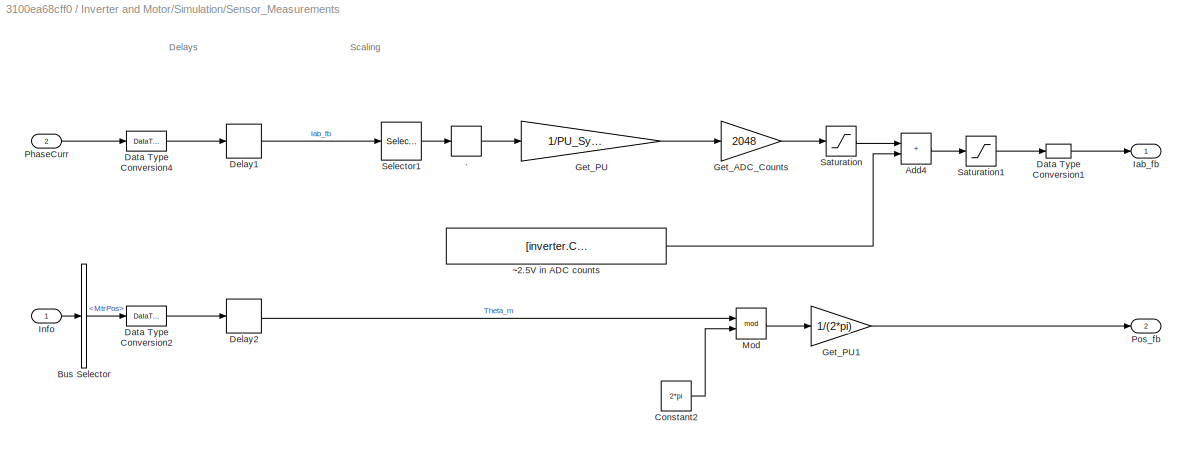
BLOCK [SubSystem] Inverter and Motor/Simulation/Sensor_Measurements
  Ports = [2, 2]
  RequestExecContextInheritance = off
BLOCK [UnaryMinus] Inverter and Motor/Simulation/Sensor_Measurements/.
BLOCK [Sum] Inverter and Motor/Simulation/Sensor_Measurements/Add4
  IconShape = rectangular
  OutDataTypeStr = uint16
  Ports = [2, 1]
BLOCK [BusSelector] Inverter and Motor/Simulation/Sensor_Measurements/Bus Selector
  OutputSignals = MtrPos
  Ports = [1, 1]
BLOCK [Constant] Inverter and Motor/Simulation/Sensor_Measurements/Constant2
  OutDataTypeStr = single
  SampleTime = -1
  Value = 2*pi
BLOCK [DataTypeConversion] Inverter and Motor/Simulation/Sensor_Measurements/Data Type Conversion1
  OutDataTypeStr = dataType
  RndMeth = Simplest
  SaturateOnIntegerOverflow = off
BLOCK [DataTypeConversion] Inverter and Motor/Simulation/Sensor_Measurements/Data Type Conversion2
  OutDataTypeStr = single
  RndMeth = Simplest
  SaturateOnIntegerOverflow = off
BLOCK [DataTypeConversion] Inverter and Motor/Simulation/Sensor_Measurements/Data Type Conversion4
  OutDataTypeStr = single
  RndMeth = Simplest
  SaturateOnIntegerOverflow = off
BLOCK [Delay] Inverter and Motor/Simulation/Sensor_Measurements/Delay1
  DelayLength = PI_params.delay_Position
  InputPortMap = u0
  Ports = [1, 1]
BLOCK [Delay] Inverter and Motor/Simulation/Sensor_Measurements/Delay2
  DelayLength = PI_params.delay_Position
  InputPortMap = u0
  Ports = [1, 1]
BLOCK [Gain] Inverter and Motor/Simulation/Sensor_Measurements/Get_ADC_Counts
  Gain = 2048
  OutDataTypeStr = Inherit: Same as input
  RndMeth = Simplest
BLOCK [Gain] Inverter and Motor/Simulation/Sensor_Measurements/Get_PU
  Gain = 1/PU_System.I_base
  RndMeth = Simplest
BLOCK [Gain] Inverter and Motor/Simulation/Sensor_Measurements/Get_PU1
  Gain = 1/(2*pi)
  OutDataTypeStr = dataType
  RndMeth = Simplest
BLOCK [Outport] Inverter and Motor/Simulation/Sensor_Measurements/Iab_fb
  VectorParamsAs1DForOutWhenUnconnected = off
BLOCK [Inport] Inverter and Motor/Simulation/Sensor_Measurements/Info
BLOCK [Math] Inverter and Motor/Simulation/Sensor_Measurements/Mod
  Operator = mod
  Ports = [2, 1]
BLOCK [Inport] Inverter and Motor/Simulation/Sensor_Measurements/PhaseCurr
  Port = 2
BLOCK [Outport] Inverter and Motor/Simulation/Sensor_Measurements/Pos_fb
  Port = 2
  VectorParamsAs1DForOutWhenUnconnected = off
BLOCK [Saturate] Inverter and Motor/Simulation/Sensor_Measurements/Saturation
  LowerLimit = -2048
  OutDataTypeStr = int32
  RndMeth = Simplest
  UpperLimit = 2048
BLOCK [Saturate] Inverter and Motor/Simulation/Sensor_Measurements/Saturation1
  LowerLimit = 0
  UpperLimit = 4095
BLOCK [Selector] Inverter and Motor/Simulation/Sensor_Measurements/Selector1
  IndexOptions = Index vector (dialog)
  Indices = [1 2]
  InputPortWidth = 3
  OutputSizes = 1
  Ports = [1, 1]
BLOCK [Constant] Inverter and Motor/Simulation/Sensor_Measurements/~2.5V in ADC counts
  OutDataTypeStr = uint16
  SampleTime = -1
  Value = [inverter.CtSensAOffset inverter.CtSensBOffset]
BLOCK [Reference] Inverter and Motor/Simulation/Surface Mount PMSM  REF=autolibpmsmexterior/Surface Mount PMSM
  Commented = on
  Ports = [2, 3]
  SourceBlock = autolibpmsmexterior/Surface Mount PMSM
  SourceProductBaseCode = PW,MT,UV,VE,VP
  SourceType = Surface Mount PMSM
BLOCK [Terminator] Inverter and Motor/Simulation/Terminator
BLOCK [VariantSink] Inverter and Motor/Variant Sink
  Ports = [1, 2]
  VariantControlMode = sim codegen switching
BLOCK [VariantSource] Inverter and Motor/Variant Source
  Ports = [2, 1]
  VariantControlMode = sim codegen switching
BLOCK [VariantSource] Inverter and Motor/Variant Source1
  Ports = [2, 1]
  VariantControlMode = sim codegen switching
BLOCK [Reference] MBD_S32K1xx_Config_Information  REF=mbd_s32k1xx_ec_toolbox/MBD_S32K1xx_Config_Information
  Ports = []
  Priority = 1
  SourceBlock = mbd_s32k1xx_ec_toolbox/MBD_S32K1xx_Config_Information
  SourceType = MBDTBX_EC_S32K
BLOCK [SubSystem] Peripheral init
  Ports = []
  Priority = 0
  RequestExecContextInheritance = off
  TreatAsAtomicUnit = on
BLOCK [Reference] Peripheral init/ADC0_Init  REF=mbd_s32k1xx_ec_toolbox/Motor Control Blocks/ADC Blocks/ADC_Config
  Ports = []
  Priority = 3
  SourceBlock = mbd_s32k1xx_ec_toolbox/Motor Control Blocks/ADC Blocks/ADC_Config
  SourceType = adc_s32k_config_block
BLOCK [Reference] Peripheral init/ADC1_IRQ  REF=mbd_s32k1xx_ec_toolbox/Motor Control Blocks/ADC Blocks/ADC_Start
  Ports = []
  Priority = 5
  SourceBlock = mbd_s32k1xx_ec_toolbox/Motor Control Blocks/ADC Blocks/ADC_Start
  SourceType = adc_s32k_start_block
BLOCK [Reference] Peripheral init/ADC1_Init  REF=mbd_s32k1xx_ec_toolbox/Motor Control Blocks/ADC Blocks/ADC_Config
  Ports = []
  Priority = 4
  SourceBlock = mbd_s32k1xx_ec_toolbox/Motor Control Blocks/ADC Blocks/ADC_Config
  SourceType = adc_s32k_config_block
BLOCK [Reference] Peripheral init/ADC_Interleave  REF=mbd_s32k1xx_ec_toolbox/Motor Control Blocks/ADC Blocks/ADC_Interleave
  Ports = []
  SourceBlock = mbd_s32k1xx_ec_toolbox/Motor Control Blocks/ADC Blocks/ADC_Interleave
  SourceType = adc_s32k_interleave_block
BLOCK [DataStoreRead] Peripheral init/Data Store Read
  DataStoreName = FAULT
  IndexOptions = Index vector (dialog)
  Indices = 1
  OutputSizes = 1
  Ports = [0, 1]
BLOCK [SubSystem] Peripheral init/Enable PDB and start FTM
  ErrorFcn = Stateflow.Translate.translate
  PermitHierarchicalResolution = ExplicitOnly
  Ports = [0, 2]
  RequestExecContextInheritance = off
  SFBlockType = Chart
  TreatAsAtomicUnit = on
BLOCK [Demux] Peripheral init/Enable PDB and start FTM/ Demux 
  Outputs = 2
  Ports = [1, 2]
BLOCK [Ground] Peripheral init/Enable PDB and start FTM/ Ground 
BLOCK [S-Function] Peripheral init/Enable PDB and start FTM/ SFunction 
  EnableBusSupport = off
  FunctionName = sf_sfun
  PortCounts = [1 1]
  Ports = [1, 1]
  SFcnIsStateOwnerBlock = off
  SFunctionDeploymentMode = off
  Tag = Stateflow S-Function 1
BLOCK [Outport] Peripheral init/Enable PDB and start FTM/Normal_Op()
  Port = 2
  VectorParamsAs1DForOutWhenUnconnected = off
BLOCK [Outport] Peripheral init/Enable PDB and start FTM/enablePDB()
  VectorParamsAs1DForOutWhenUnconnected = off
BLOCK [Reference] Peripheral init/GD3000_Config  REF=mbd_msd_ec_toolbox/TPP/TPP_Config
  Ports = []
  Priority = 1
  SourceBlock = mbd_msd_ec_toolbox/TPP/TPP_Config
  SourceType = tpp_s32k_config
BLOCK [SubSystem] Peripheral init/GD3000_interrupt
  Ports = [0, 0, 0, 1]
  RequestExecContextInheritance = off
  TreatAsAtomicUnit = on
BLOCK [DataStoreWrite] Peripheral init/GD3000_interrupt/FAULT_write
  DataStoreName = FAULT
  IndexOptions = Index vector (dialog)
  Indices = 1
  OutputSizes = 1
  Ports = [1]
BLOCK [Reference] Peripheral init/GD3000_interrupt/FTM_PWM_Disable_Enable  REF=mbd_s32k1xx_ec_toolbox/Motor Control Blocks/FTM Blocks/FTM_PWM_Disable_Enable
  Ports = []
  SourceBlock = mbd_s32k1xx_ec_toolbox/Motor Control Blocks/FTM Blocks/FTM_PWM_Disable_Enable
  SourceType = FTM_s32k_pwm_disen
BLOCK [Constant] Peripheral init/GD3000_interrupt/NOK
  OutDataTypeStr = boolean
BLOCK [Reference] Peripheral init/GD3000_interrupt/TPP_Functional_Mode  REF=mbd_msd_ec_toolbox/TPP/TPP_Functional_Mode
  Ports = []
  SourceBlock = mbd_msd_ec_toolbox/TPP/TPP_Functional_Mode
  SourceType = TPP_functional_mode
BLOCK [TriggerPort] Peripheral init/GD3000_interrupt/function
  Ports = []
  StatesWhenEnabling = held
  TriggerType = function-call
  VariantControl = Variant
BLOCK [Reference] Peripheral init/GD300_ISR_Callback   REF=mbd_msd_ec_toolbox/TPP/TPP_ISR
  Ports = [0, 1]
  SourceBlock = mbd_msd_ec_toolbox/TPP/TPP_ISR
  SourceType = tpp_s32k_isr
BLOCK [If] Peripheral init/If
  IfExpression = u1 == 0
  Ports = [1, 1]
  ShowElse = off
BLOCK [SubSystem] Peripheral init/If Action Subsystem
  Ports = [0, 0, 0, 0, 0, 0, 0, 1]
  RequestExecContextInheritance = off
  TreatAsAtomicUnit = on
BLOCK [ActionPort] Peripheral init/If Action Subsystem/Action Port
  ActionPortLabel = if(u1 == 0)
BLOCK [Constant] Peripheral init/If Action Subsystem/LED_GREEN
  OutDataTypeStr = boolean
  SampleTime = -1
  Value = 0
BLOCK [Reference] Peripheral init/If Action Subsystem/LED_GREEN_ON  REF=mbd_s32k1xx_ec_toolbox/GPIO Blocks/Digital_Output
  Ports = [1]
  SourceBlock = mbd_s32k1xx_ec_toolbox/GPIO Blocks/Digital_Output
  SourceType = gpio_s32k_output
BLOCK [Constant] Peripheral init/If Action Subsystem/LED_RED
  OutDataTypeStr = boolean
  SampleTime = -1
BLOCK [Reference] Peripheral init/If Action Subsystem/LED_RED_OFF  REF=mbd_s32k1xx_ec_toolbox/GPIO Blocks/Digital_Output
  Ports = [1]
  SourceBlock = mbd_s32k1xx_ec_toolbox/GPIO Blocks/Digital_Output
  SourceType = gpio_s32k_output
BLOCK [Reference] Peripheral init/LPSPI_Config   REF=mbd_s32k1xx_ec_toolbox/Communication Blocks/SPI Blocks/LPSPI_Config

  Ports = []
  SourceBlock = mbd_s32k1xx_ec_toolbox/Communication Blocks/SPI Blocks/LPSPI_Config
  SourceType = lpspi_s32k_config
BLOCK [Reference] Peripheral init/LPUART_Config  REF=mbd_s32k1xx_ec_toolbox/Communication Blocks/UART Blocks/LPUART_Config
  Ports = []
  Priority = 1
  SourceBlock = mbd_s32k1xx_ec_toolbox/Communication Blocks/UART Blocks/LPUART_Config
  SourceType = lpuart_s32k_config
BLOCK [Reference] Peripheral init/PDB0_Init  REF=mbd_s32k1xx_ec_toolbox/Motor Control Blocks/PDB Blocks/PDB_Config
  Ports = []
  Priority = 1
  SourceBlock = mbd_s32k1xx_ec_toolbox/Motor Control Blocks/PDB Blocks/PDB_Config
  SourceType = pdb_s32k_config_block
BLOCK [Reference] Peripheral init/PDB1_Init  REF=mbd_s32k1xx_ec_toolbox/Motor Control Blocks/PDB Blocks/PDB_Config
  Ports = []
  Priority = 2
  SourceBlock = mbd_s32k1xx_ec_toolbox/Motor Control Blocks/PDB Blocks/PDB_Config
  SourceType = pdb_s32k_config_block
BLOCK [Terminator] Peripheral init/Terminator
BLOCK [SubSystem] Peripheral init/enable_FTM_PDB_ADC_triggering
  Ports = [0, 0, 0, 1]
  RTWSystemCode = Inline
  RequestExecContextInheritance = off
  TreatAsAtomicUnit = on
BLOCK [SubSystem] Peripheral init/enable_FTM_PDB_ADC_triggering/Custom code to reload the PDB value
  CopyFcn = cccopyfcn(gcb)
  OpenFcn = ccopenfcn('System Outputs Function')
  Ports = []
  Priority = 6
  RequestExecContextInheritance = off
BLOCK [Reference] Peripheral init/enable_FTM_PDB_ADC_triggering/FTM_Init_Trigger_Disable_Enable  REF=mbd_s32k1xx_ec_toolbox/Motor Control Blocks/FTM Blocks/FTM_Init_Trigger_Disable_Enable
  Ports = []
  Priority = 3
  SourceBlock = mbd_s32k1xx_ec_toolbox/Motor Control Blocks/FTM Blocks/FTM_Init_Trigger_Disable_Enable
  SourceType = FTM_s32k_init_disen
BLOCK [Reference] Peripheral init/enable_FTM_PDB_ADC_triggering/FTM_PWM_Disable_Enable  REF=mbd_s32k1xx_ec_toolbox/Motor Control Blocks/FTM Blocks/FTM_PWM_Disable_Enable
  Ports = []
  Priority = 1
  SourceBlock = mbd_s32k1xx_ec_toolbox/Motor Control Blocks/FTM Blocks/FTM_PWM_Disable_Enable
  SourceType = FTM_s32k_pwm_disen
BLOCK [Reference] Peripheral init/enable_FTM_PDB_ADC_triggering/PDB0_Enable  REF=mbd_s32k1xx_ec_toolbox/Motor Control Blocks/PDB Blocks/PDB_Enable
  Ports = []
  Priority = 4
  SourceBlock = mbd_s32k1xx_ec_toolbox/Motor Control Blocks/PDB Blocks/PDB_Enable
  SourceType = pdb_s32k_enable_block
BLOCK [Reference] Peripheral init/enable_FTM_PDB_ADC_triggering/PDB1_Enable  REF=mbd_s32k1xx_ec_toolbox/Motor Control Blocks/PDB Blocks/PDB_Enable
  Ports = []
  Priority = 5
  SourceBlock = mbd_s32k1xx_ec_toolbox/Motor Control Blocks/PDB Blocks/PDB_Enable
  SourceType = pdb_s32k_enable_block
BLOCK [Reference] Peripheral init/enable_FTM_PDB_ADC_triggering/TPP_ISR_Enable_Disable  REF=mbd_msd_ec_toolbox/TPP/TPP_ISR_Enable_Disable
  Ports = []
  Priority = 7
  SourceBlock = mbd_msd_ec_toolbox/TPP/TPP_ISR_Enable_Disable
  SourceType = tpp_s32k_int_en_dis
BLOCK [TriggerPort] Peripheral init/enable_FTM_PDB_ADC_triggering/function
  Ports = []
  StatesWhenEnabling = held
  TriggerType = function-call
  VariantControl = (inherit)
BLOCK [RateTransition] RT1
  Deterministic = off
  OutPortSampleTime = Ts_speed
  Priority = 2
BLOCK [RateTransition] RT10
  Deterministic = off
  OutPortSampleTime = Ts
BLOCK [RateTransition] RT11
  Deterministic = off
  OutPortSampleTime = Ts
BLOCK [RateTransition] RT2
  Deterministic = off
  OutPortSampleTime = Ts_speed
  Priority = 1
BLOCK [RateTransition] RT8
  Deterministic = off
BLOCK [RateTransition] RT9
  Deterministic = off
  OutPortSampleTime = Ts
BLOCK [RateTransition] Rate Transition1
BLOCK [Scope] Scope3
  Floating = off
  IOType = viewer
  NumInputPorts = 1
  Ports = []
  ScopeSpecificationString = Simulink.scopes.TimeScopeBlockCfg('CurrentConfiguration', extmgr.ConfigurationSet(extmgr.Configuration('Core','General UI',true),extmgr.Configuration('Core','Source UI',true),extmgr.Configuration('Sources','WiredSimulink',true,'DataLoggingVariableName','ScopeData1'),extmgr.Configuration('Visuals','Time Domain',true,'SerializedDisplays',{struct('MinYLimReal','-1.00000','MaxYLimReal','1.00000','YLab...<+2677ch>
BLOCK [SubSystem] Serial Receive
  Ports = [0, 1]
  RTWMemSecFuncExecute = code_ramfuncs
  RequestExecContextInheritance = off
  SystemSampleTime = 1e-3
BLOCK [SubSystem] Serial Receive/Codegen
  Ports = [0, 1]
  RequestExecContextInheritance = off
BLOCK [Constant] Serial Receive/Codegen/Constant
  OutDataTypeStr = Inherit: Inherit via back propagation
  Value = 3
BLOCK [Reference] Serial Receive/Codegen/LPUART_Receive  REF=mbd_s32k1xx_ec_toolbox/Communication Blocks/UART Blocks/LPUART_Receive
  Ports = [1, 1]
  SourceBlock = mbd_s32k1xx_ec_toolbox/Communication Blocks/UART Blocks/LPUART_Receive
  SourceType = lpuart_s32k_receive
BLOCK [Mux] Serial Receive/Codegen/Mux2
  DisplayOption = bar
  Inputs = 2
  Ports = [2, 1]
BLOCK [Outport] Serial Receive/Codegen/Out1
BLOCK [SubSystem] Serial Receive/Codegen/Subsystem3
  Ports = [1, 2]
  RequestExecContextInheritance = off
BLOCK [Reference] Serial Receive/Codegen/Subsystem3/Bitwise OR  REF=simulink/Logic and Bit
Operations/Bitwise
Operator
  Ports = [2, 1]
  SourceBlock = simulink/Logic and Bit\nOperations/Bitwise\nOperator
  SourceProductBaseCode = SL
  SourceType = Bitwise Operator
BLOCK [Reference] Serial Receive/Codegen/Subsystem3/Bitwise OR1  REF=simulink/Logic and Bit
Operations/Bitwise
Operator
  Ports = [1, 1]
  SourceBlock = simulink/Logic and Bit\nOperations/Bitwise\nOperator
  SourceProductBaseCode = SL
  SourceType = Bitwise Operator
BLOCK [DataStoreWrite] Serial Receive/Codegen/Subsystem3/Data Store Write
  DataStoreName = Debug_Signal
  IndexOptions = Index vector (dialog)
  Indices = 1
  OutputSizes = 1
  Ports = [1]
BLOCK [DataTypeConversion] Serial Receive/Codegen/Subsystem3/Data Type Conversion
  OutDataTypeStr = uint16
  RndMeth = Simplest
  SaturateOnIntegerOverflow = off
BLOCK [DataTypeConversion] Serial Receive/Codegen/Subsystem3/Data Type Conversion1
  ConvertRealWorld = Stored Integer (SI)
  OutDataTypeStr = uint16
  RndMeth = Simplest
  SaturateOnIntegerOverflow = off
BLOCK [DataTypeConversion] Serial Receive/Codegen/Subsystem3/Data Type Conversion2
  ConvertRealWorld = Stored Integer (SI)
  OutDataTypeStr = uint8
  RndMeth = Simplest
  SaturateOnIntegerOverflow = off
BLOCK [DataTypeConversion] Serial Receive/Codegen/Subsystem3/Data Type Conversion3
  ConvertRealWorld = Stored Integer (SI)
  OutDataTypeStr = uint16
  RndMeth = Simplest
  SaturateOnIntegerOverflow = off
BLOCK [Demux] Serial Receive/Codegen/Subsystem3/Demux
  Outputs = 3
  Ports = [1, 3]
BLOCK [Inport] Serial Receive/Codegen/Subsystem3/Input
  PortDimensions = 3
BLOCK [Outport] Serial Receive/Codegen/Subsystem3/Out1
BLOCK [Outport] Serial Receive/Codegen/Subsystem3/Out2
  Port = 2
BLOCK [ArithShift] Serial Receive/Codegen/Subsystem3/Shift Arithmetic
  BitShiftDirection = Left
  BitShiftNumber = 8
  InputPortMap = u0
  Ports = [1, 1]
BLOCK [ArithShift] Serial Receive/Codegen/Subsystem3/Shift Arithmetic1
  BitShiftDirection = Right
  BitShiftNumber = 2
  InputPortMap = u0
  Ports = [1, 1]
BLOCK [DataStoreWrite] Serial Receive/Data Store Write
  DataStoreName = Enable
  IndexOptions = Index vector (dialog)
  Indices = 1
  OutputSizes = 1
  Ports = [1]
BLOCK [DataStoreWrite] Serial Receive/Data Store Write1
  DataStoreName = DesiredSpeed
  IndexOptions = Index vector (dialog)
  Indices = 1
  OutputSizes = 1
  Ports = [1]
BLOCK [DataTypeConversion] Serial Receive/Data Type Conversion1
  ConvertRealWorld = Stored Integer (SI)
  OutDataTypeStr = fixdt(1,16,12)
  RndMeth = Simplest
  SaturateOnIntegerOverflow = off
BLOCK [DataTypeConversion] Serial Receive/Data Type Conversion2
  OutDataTypeStr = dataType
  RndMeth = Simplest
  SaturateOnIntegerOverflow = off
BLOCK [DataTypeConversion] Serial Receive/Data Type Conversion3
  OutDataTypeStr = boolean
  RndMeth = Simplest
  SaturateOnIntegerOverflow = off
BLOCK [Demux] Serial Receive/Demux
  Outputs = 2
  Ports = [1, 2]
BLOCK [Outport] Serial Receive/Desired_Speed
  VectorParamsAs1DForOutWhenUnconnected = off
BLOCK [SubSystem] Serial Receive/Simulation
  Ports = [0, 1]
  RequestExecContextInheritance = off
BLOCK [Outport] Serial Receive/Simulation/Data
BLOCK [DataTypeConversion] Serial Receive/Simulation/Data Type Conversion
  OutDataTypeStr = uint16
  RndMeth = Simplest
  SaturateOnIntegerOverflow = off
BLOCK [DataTypeConversion] Serial Receive/Simulation/Data Type Conversion1
  ConvertRealWorld = Stored Integer (SI)
  OutDataTypeStr = uint16
  RndMeth = Simplest
  SaturateOnIntegerOverflow = off
BLOCK [Step] Serial Receive/Simulation/Enable
  OutDataTypeStr = single
BLOCK [Mux] Serial Receive/Simulation/Mux2
  DisplayOption = bar
  Inputs = 2
  Ports = [2, 1]
BLOCK [Step] Serial Receive/Simulation/Speed_Ref (rpm)
  After = 0.8*pmsm.N_base
  Before = 0.2*pmsm.N_base
  OutDataTypeStr = single
  Time = 4
BLOCK [Gain] Serial Receive/Simulation/rpm2PU
  Gain = 1/pmsm.N_base
  OutDataTypeStr = fixdt(1,16,12)
  RndMeth = Simplest
BLOCK [VariantSource] Serial Receive/Variant Source
  Ports = [2, 1]
  VariantControlMode = sim codegen switching
BLOCK [SubSystem] Speed Control
  Ports = [2, 1]
  RequestExecContextInheritance = off
  SystemSampleTime = Ts_speed
  TreatAsAtomicUnit = on
BLOCK [Constant] Speed Control/Id_ref
  OutDataTypeStr = dataType
  SampleTime = Ts_speed
  Value = 0
BLOCK [Outport] Speed Control/IdqRef_PU
  VectorParamsAs1DForOutWhenUnconnected = off
BLOCK [Mux] Speed Control/Mux1
  DisplayOption = bar
  Inputs = 2
  Ports = [2, 1]
BLOCK [SubSystem] Speed Control/PI_Controller_Speed
  Ports = [2, 1]
  Priority = 2
  RequestExecContextInheritance = off
  TreatAsAtomicUnit = on
BLOCK [DataStoreRead] Speed Control/PI_Controller_Speed/Data Store Read1
  DataStoreName = Enable
  IndexOptions = Index vector (dialog)
  Indices = 1
  OutputSizes = 1
  Ports = [0, 1]
BLOCK [Reference] Speed Control/PI_Controller_Speed/Discrete PI Controller with anti-windup & reset  REF=mcbcontrolslib/Discrete PI Controller 
with anti-windup & reset
  Ports = [5, 1]
  SourceBlock = mcbcontrolslib/Discrete PI Controller \nwith anti-windup & reset
  SourceProductBaseCode = MT
  SourceType = Discrete PI Controller with anti-windup and reset
BLOCK [Outport] Speed Control/PI_Controller_Speed/Iq_ref
  VectorParamsAs1DForOutWhenUnconnected = off
BLOCK [Constant] Speed Control/PI_Controller_Speed/Ki1
  NameLocation = top
  OutDataTypeStr = dataType
  SampleTime = -1
  Value = PI_params.Ki_speed*Ts_speed
BLOCK [Constant] Speed Control/PI_Controller_Speed/Ki2
  NameLocation = top
  OutDataTypeStr = dataType
  SampleTime = -1
  Value = 0
BLOCK [Constant] Speed Control/PI_Controller_Speed/Kp1
  NameLocation = top
  OutDataTypeStr = dataType
  SampleTime = -1
  Value = PI_params.Kp_speed/2
BLOCK [Logic] Speed Control/PI_Controller_Speed/Logical Operator
  AllPortsSameDT = off
  IconShape = distinctive
  Operator = NOT
  OutDataTypeStr = boolean
  Ports = [1, 1]
BLOCK [Inport] Speed Control/PI_Controller_Speed/N_fb
  Port = 2
BLOCK [Inport] Speed Control/PI_Controller_Speed/N_ref
BLOCK [Sum] Speed Control/PI_Controller_Speed/Sum
  AccumDataTypeStr = Inherit: Same as first input
  Inputs = |+-
  OutDataTypeStr = Inherit: Same as first input
  Ports = [2, 1]
  RndMeth = Simplest
BLOCK [Inport] Speed Control/Speed_Meas_PU
  Port = 2
BLOCK [Inport] Speed Control/Speed_Ref_PU
BLOCK [SubSystem] Speed Control/Speed_Ref_Selector
  Ports = [2, 1]
  Priority = 1
  RequestExecContextInheritance = off
  TreatAsAtomicUnit = on
BLOCK [DataStoreRead] Speed Control/Speed_Ref_Selector/Data Store Read1
  DataStoreName = Enable
  IndexOptions = Index vector (dialog)
  Indices = 1
  OutputSizes = 1
  Ports = [0, 1]
BLOCK [Reference] Speed Control/Speed_Ref_Selector/IIR Filter  REF=mcbcontrolslib/IIR Filter
  Ports = [1, 1]
  SourceBlock = mcbcontrolslib/IIR Filter
  SourceProductBaseCode = MT
  SourceType = IIR Filter
BLOCK [Inport] Speed Control/Speed_Ref_Selector/Speed_Ref_In
BLOCK [Inport] Speed Control/Speed_Ref_Selector/Speed_Ref_Open
  Port = 2
BLOCK [Outport] Speed Control/Speed_Ref_Selector/Speed_Ref_PU
BLOCK [Switch] Speed Control/Speed_Ref_Selector/Switch
  Criteria = u2 > Threshold
  InputSameDT = off
  SaturateOnIntegerOverflow = off
  Threshold = 0.5
BLOCK [SubSystem] UART_Tx
  Ports = [1]
  RequestExecContextInheritance = off
  SystemSampleTime = Ts_uart
  TreatAsAtomicUnit = on
BLOCK [SubSystem] UART_Tx/Cast to uint8
  Ports = [1, 2]
  RequestExecContextInheritance = off
BLOCK [Reference] UART_Tx/Cast to uint8/Bitwise Operator  REF=simulink/Logic and Bit
Operations/Bitwise
Operator
  Ports = [1, 1]
  SourceBlock = simulink/Logic and Bit\nOperations/Bitwise\nOperator
  SourceProductBaseCode = SL
  SourceType = Bitwise Operator
BLOCK [Reference] UART_Tx/Cast to uint8/Bitwise Operator1  REF=simulink/Logic and Bit
Operations/Bitwise
Operator
  Ports = [1, 1]
  SourceBlock = simulink/Logic and Bit\nOperations/Bitwise\nOperator
  SourceProductBaseCode = SL
  SourceType = Bitwise Operator
BLOCK [DataTypeConversion] UART_Tx/Cast to uint8/Data Type Conversion4
  ConvertRealWorld = Stored Integer (SI)
  OutDataTypeStr = uint16
  RndMeth = Simplest
  SaturateOnIntegerOverflow = off
BLOCK [DataTypeConversion] UART_Tx/Cast to uint8/Data Type Conversion6
  OutDataTypeStr = uint8
  RndMeth = Simplest
  SaturateOnIntegerOverflow = off
BLOCK [DataTypeConversion] UART_Tx/Cast to uint8/Data Type Conversion7
  OutDataTypeStr = uint8
  RndMeth = Simplest
  SaturateOnIntegerOverflow = off
BLOCK [Inport] UART_Tx/Cast to uint8/In1
BLOCK [Outport] UART_Tx/Cast to uint8/Out1
BLOCK [Outport] UART_Tx/Cast to uint8/Out2
  Port = 2
BLOCK [ArithShift] UART_Tx/Cast to uint8/Shift Arithmetic
  BitShiftDirection = Right
  BitShiftNumber = 8
  InputPortMap = u0
  Ports = [1, 1]
BLOCK [SubSystem] UART_Tx/Cast to uint8_1
  Ports = [1, 2]
  RequestExecContextInheritance = off
BLOCK [Reference] UART_Tx/Cast to uint8_1/Bitwise Operator  REF=simulink/Logic and Bit
Operations/Bitwise
Operator
  Ports = [1, 1]
  SourceBlock = simulink/Logic and Bit\nOperations/Bitwise\nOperator
  SourceProductBaseCode = SL
  SourceType = Bitwise Operator
BLOCK [Reference] UART_Tx/Cast to uint8_1/Bitwise Operator1  REF=simulink/Logic and Bit
Operations/Bitwise
Operator
  Ports = [1, 1]
  SourceBlock = simulink/Logic and Bit\nOperations/Bitwise\nOperator
  SourceProductBaseCode = SL
  SourceType = Bitwise Operator
BLOCK [DataTypeConversion] UART_Tx/Cast to uint8_1/Data Type Conversion4
  ConvertRealWorld = Stored Integer (SI)
  OutDataTypeStr = uint16
  RndMeth = Simplest
  SaturateOnIntegerOverflow = off
BLOCK [DataTypeConversion] UART_Tx/Cast to uint8_1/Data Type Conversion6
  OutDataTypeStr = uint8
  RndMeth = Simplest
  SaturateOnIntegerOverflow = off
BLOCK [DataTypeConversion] UART_Tx/Cast to uint8_1/Data Type Conversion7
  OutDataTypeStr = uint8
  RndMeth = Simplest
  SaturateOnIntegerOverflow = off
BLOCK [Inport] UART_Tx/Cast to uint8_1/In1
BLOCK [Outport] UART_Tx/Cast to uint8_1/Out1
BLOCK [Outport] UART_Tx/Cast to uint8_1/Out2
  Port = 2
BLOCK [ArithShift] UART_Tx/Cast to uint8_1/Shift Arithmetic
  BitShiftDirection = Right
  BitShiftNumber = 8
  InputPortMap = u0
  Ports = [1, 1]
BLOCK [Inport] UART_Tx/Data
BLOCK [DataTypeConversion] UART_Tx/Data Type Conversion1
  OutDataTypeStr = fixdt(1,16,12)
  RndMeth = Simplest
  SaturateOnIntegerOverflow = off
BLOCK [DataTypeConversion] UART_Tx/Data Type Conversion2
  OutDataTypeStr = fixdt(1,16,12)
  RndMeth = Simplest
  SaturateOnIntegerOverflow = off
BLOCK [Demux] UART_Tx/Demux
  Outputs = 2
  Ports = [1, 2]
BLOCK [Constant] UART_Tx/End
  OutDataTypeStr = uint8
  Value = hex2dec('53')
BLOCK [Reference] UART_Tx/LPUART_Transmit  REF=mbd_s32k1xx_ec_toolbox/Communication Blocks/UART Blocks/LPUART_Transmit
  Ports = [1]
  Priority = 2
  SourceBlock = mbd_s32k1xx_ec_toolbox/Communication Blocks/UART Blocks/LPUART_Transmit
  SourceType = lpuart_s32k_transmit
BLOCK [Mux] UART_Tx/Mux2
  DisplayOption = bar
  Inputs = 6
  Ports = [6, 1]
BLOCK [Reshape] UART_Tx/Reshape
  Ports = [1, 1]
BLOCK [Constant] UART_Tx/Start
  OutDataTypeStr = uint8
  Value = hex2dec('45')
BLOCK [VariantSource] Variant Source1
  OutputFunctionCall = on
  Ports = [2, 1]
  VariantControlMode = sim codegen switching
ANNOTATION (root): Note: This example requires a NXP MCSPTE1AK144 Motor Control Kit
ANNOTATION (root): Explore more: 1. Edit motor & inverter parameters 2. Use offset computatation model to find out position offset 3. Update offset in Init script to variable ' pmsm.PositionOffset' 4. Run the init script 5. Control motor via host model
ANNOTATION (root): <copyright redacted>
ANNOTATION (root): Field-Oriented Control for PMSM with Hall sensor
ANNOTATION (root): Hardware init
ANNOTATION (root): Main loop
ANNOTATION (root): Variables init
ANNOTATION Current Control/Input Scaling: Variant control to pass plant simulated value for simulation and ADC measured value for codegen.
ANNOTATION Current Control/Inverter (Code Generation): System Outputs
ANNOTATION Current Control/Inverter (Code Generation): for BoostXL-DRV8305 connected with LaunchXL-28379D
ANNOTATION Inverter and Motor/Simulation/Sensor_Measurements: Delays
ANNOTATION Inverter and Motor/Simulation/Sensor_Measurements: Scaling
ANNOTATION Peripheral init: Current Measurement Initialization
ANNOTATION Peripheral init: Current Protection
ANNOTATION Peripheral init: LED Initialization
ANNOTATION Peripheral init: Peripherals Initialization
ANNOTATION Peripheral init: System Initialization
LINE  /CurrentController_INT:1 ->  /Mux:1
LINE  /Hall_INT:1 ->  /Mux:2
LINE  /Mux:1 ->  /SW_INT:1
LINE  :1 -> Variant Source1:2
LINE Current Control/Control_System/Clarke Transform:1 -> Current Control/Control_System/Signal Conversion4:1
LINE Current Control/Control_System/Clarke Transform:2 -> Current Control/Control_System/Signal Conversion5:1
LINE Current Control/Control_System/Current_Controllers/DQ Limiter:1 -> Current Control/Control_System/Current_Controllers/Vd_ref:1
LINE Current Control/Control_System/Current_Controllers/DQ Limiter:2 -> Current Control/Control_System/Current_Controllers/Vq_ref:1
LINE Current Control/Control_System/Current_Controllers/DQ Limiter:3 -> Current Control/Control_System/Current_Controllers/Terminator:1
LINE Current Control/Control_System/Current_Controllers/Demux:1 -> Current Control/Control_System/Current_Controllers/Signal Conversion2:1
LINE Current Control/Control_System/Current_Controllers/Demux:2 -> Current Control/Control_System/Current_Controllers/Signal Conversion3:1
LINE Current Control/Control_System/Current_Controllers/Id:1 -> Current Control/Control_System/Current_Controllers/Signal Conversion:1
LINE Current Control/Control_System/Current_Controllers/Idq_ref_PU:1 -> Current Control/Control_System/Current_Controllers/Demux:1
LINE Current Control/Control_System/Current_Controllers/Iq:1 -> Current Control/Control_System/Current_Controllers/Signal Conversion1:1
LINE Current Control/Control_System/Current_Controllers/Mux:1 -> Current Control/Control_System/Current_Controllers/Idq:1
LINE Current Control/Control_System/Current_Controllers/PI_Controller_Id/Data Store Read1:1 -> Current Control/Control_System/Current_Controllers/PI_Controller_Id/Logical Operator:1
LINE Current Control/Control_System/Current_Controllers/PI_Controller_Id/Discrete PI Controller with anti-windup & reset:1 -> Current Control/Control_System/Current_Controllers/PI_Controller_Id/V_ref:1
LINE Current Control/Control_System/Current_Controllers/PI_Controller_Id/I_fb:1 -> Current Control/Control_System/Current_Controllers/PI_Controller_Id/Sum:2
LINE Current Control/Control_System/Current_Controllers/PI_Controller_Id/I_ref:1 -> Current Control/Control_System/Current_Controllers/PI_Controller_Id/Sum:1
LINE Current Control/Control_System/Current_Controllers/PI_Controller_Id/Ki1:1 -> Current Control/Control_System/Current_Controllers/PI_Controller_Id/Discrete PI Controller with anti-windup & reset:5
LINE Current Control/Control_System/Current_Controllers/PI_Controller_Id/Ki:1 -> Current Control/Control_System/Current_Controllers/PI_Controller_Id/Discrete PI Controller with anti-windup & reset:3
LINE Current Control/Control_System/Current_Controllers/PI_Controller_Id/Kp:1 -> Current Control/Control_System/Current_Controllers/PI_Controller_Id/Discrete PI Controller with anti-windup & reset:2
LINE Current Control/Control_System/Current_Controllers/PI_Controller_Id/Logical Operator:1 -> Current Control/Control_System/Current_Controllers/PI_Controller_Id/Discrete PI Controller with anti-windup & reset:4
LINE Current Control/Control_System/Current_Controllers/PI_Controller_Id/Sum:1 -> Current Control/Control_System/Current_Controllers/PI_Controller_Id/Discrete PI Controller with anti-windup & reset:1
LINE Current Control/Control_System/Current_Controllers/PI_Controller_Id:1 -> Current Control/Control_System/Current_Controllers/DQ Limiter:1
LINE Current Control/Control_System/Current_Controllers/PI_Controller_Iq/Data Store Read1:1 -> Current Control/Control_System/Current_Controllers/PI_Controller_Iq/Logical Operator:1
LINE Current Control/Control_System/Current_Controllers/PI_Controller_Iq/Discrete PI Controller with anti-windup & reset:1 -> Current Control/Control_System/Current_Controllers/PI_Controller_Iq/V_ref:1
LINE Current Control/Control_System/Current_Controllers/PI_Controller_Iq/I_fb:1 -> Current Control/Control_System/Current_Controllers/PI_Controller_Iq/Sum:2
LINE Current Control/Control_System/Current_Controllers/PI_Controller_Iq/I_ref:1 -> Current Control/Control_System/Current_Controllers/PI_Controller_Iq/Sum:1
LINE Current Control/Control_System/Current_Controllers/PI_Controller_Iq/Ki:1 -> Current Control/Control_System/Current_Controllers/PI_Controller_Iq/Discrete PI Controller with anti-windup & reset:3
LINE Current Control/Control_System/Current_Controllers/PI_Controller_Iq/Kp1:1 -> Current Control/Control_System/Current_Controllers/PI_Controller_Iq/Discrete PI Controller with anti-windup & reset:5
LINE Current Control/Control_System/Current_Controllers/PI_Controller_Iq/Kp:1 -> Current Control/Control_System/Current_Controllers/PI_Controller_Iq/Discrete PI Controller with anti-windup & reset:2
LINE Current Control/Control_System/Current_Controllers/PI_Controller_Iq/Logical Operator:1 -> Current Control/Control_System/Current_Controllers/PI_Controller_Iq/Discrete PI Controller with anti-windup & reset:4
LINE Current Control/Control_System/Current_Controllers/PI_Controller_Iq/Sum:1 -> Current Control/Control_System/Current_Controllers/PI_Controller_Iq/Discrete PI Controller with anti-windup & reset:1
LINE Current Control/Control_System/Current_Controllers/PI_Controller_Iq:1 -> Current Control/Control_System/Current_Controllers/DQ Limiter:2
NET Current Control/Control_System/Current_Controllers/Signal Conversion1:1 -> Current Control/Control_System/Current_Controllers/Mux:4, Current Control/Control_System/Current_Controllers/PI_Controller_Iq:2
NET Current Control/Control_System/Current_Controllers/Signal Conversion2:1 -> Current Control/Control_System/Current_Controllers/Mux:1, Current Control/Control_System/Current_Controllers/PI_Controller_Id:1
NET Current Control/Control_System/Current_Controllers/Signal Conversion3:1 -> Current Control/Control_System/Current_Controllers/Mux:3, Current Control/Control_System/Current_Controllers/PI_Controller_Iq:1
NET Current Control/Control_System/Current_Controllers/Signal Conversion:1 -> Current Control/Control_System/Current_Controllers/Mux:2, Current Control/Control_System/Current_Controllers/PI_Controller_Id:2
LINE Current Control/Control_System/Current_Controllers:1 -> Current Control/Control_System/Signal Conversion:1
LINE Current Control/Control_System/Current_Controllers:2 -> Current Control/Control_System/Signal Conversion1:1
LINE Current Control/Control_System/Current_Controllers:3 -> Current Control/Control_System/Idq_debug:1
LINE Current Control/Control_System/Demux:1 -> Current Control/Control_System/Clarke Transform:1
LINE Current Control/Control_System/Demux:2 -> Current Control/Control_System/Clarke Transform:2
LINE Current Control/Control_System/From1:1 -> Current Control/Control_System/Inverse Park Transform:4
LINE Current Control/Control_System/From:1 -> Current Control/Control_System/Inverse Park Transform:3
LINE Current Control/Control_System/Iab_meas_PU:1 -> Current Control/Control_System/Demux:1
LINE Current Control/Control_System/Idq_ref_PU:1 -> Current Control/Control_System/Current_Controllers:3
LINE Current Control/Control_System/Inverse Park Transform:1 -> Current Control/Control_System/Signal Conversion2:1
LINE Current Control/Control_System/Inverse Park Transform:2 -> Current Control/Control_System/Signal Conversion3:1
LINE Current Control/Control_System/Mux1:1 -> Current Control/Control_System/Vabc in PU:1
LINE Current Control/Control_System/Park Transform:1 -> Current Control/Control_System/Current_Controllers:1
LINE Current Control/Control_System/Park Transform:2 -> Current Control/Control_System/Current_Controllers:2
LINE Current Control/Control_System/Pos_PU:1 -> Current Control/Control_System/Sine-Cosine Lookup:1
LINE Current Control/Control_System/Signal Conversion1:1 -> Current Control/Control_System/Inverse Park Transform:2
LINE Current Control/Control_System/Signal Conversion2:1 -> Current Control/Control_System/Space Vector Generator:1
LINE Current Control/Control_System/Signal Conversion3:1 -> Current Control/Control_System/Space Vector Generator:2
LINE Current Control/Control_System/Signal Conversion4:1 -> Current Control/Control_System/Park Transform:1
LINE Current Control/Control_System/Signal Conversion5:1 -> Current Control/Control_System/Park Transform:2
LINE Current Control/Control_System/Signal Conversion:1 -> Current Control/Control_System/Inverse Park Transform:1
NET Current Control/Control_System/Sine-Cosine Lookup:1 -> Current Control/Control_System/Goto:1, Current Control/Control_System/Park Transform:3
NET Current Control/Control_System/Sine-Cosine Lookup:2 -> Current Control/Control_System/Goto1:1, Current Control/Control_System/Park Transform:4
LINE Current Control/Control_System/Space Vector Generator:1 -> Current Control/Control_System/Mux1:1
LINE Current Control/Control_System/Space Vector Generator:2 -> Current Control/Control_System/Mux1:2
LINE Current Control/Control_System/Space Vector Generator:3 -> Current Control/Control_System/Mux1:3
LINE Current Control/Control_System:1 -> Current Control/Output_Scaling:1
LINE Current Control/Control_System:2 -> Current Control/Debug_signals:1
LINE Current Control/Debug_signals/Data Store Read1:1 -> Current Control/Debug_signals/Multiport Switch:1
LINE Current Control/Debug_signals/Data Store Read:1 -> Current Control/Debug_signals/Mux:1
LINE Current Control/Debug_signals/Demux1:1 -> Current Control/Debug_signals/Mux:5
LINE Current Control/Debug_signals/Demux1:2 -> Current Control/Debug_signals/Mux:6
LINE Current Control/Debug_signals/Demux1:3 -> Current Control/Debug_signals/Mux:7
LINE Current Control/Debug_signals/Demux1:4 -> Current Control/Debug_signals/Mux:8
LINE Current Control/Debug_signals/Demux:1 -> Current Control/Debug_signals/Mux:3
LINE Current Control/Debug_signals/Demux:2 -> Current Control/Debug_signals/Mux:4
LINE Current Control/Debug_signals/From:1 -> Current Control/Debug_signals/Mux:2
LINE Current Control/Debug_signals/Ia_Pos:1 -> Current Control/Debug_signals/Multiport Switch:6
LINE Current Control/Debug_signals/Iab:1 -> Current Control/Debug_signals/Multiport Switch:5
LINE Current Control/Debug_signals/Iab_PU:1 -> Current Control/Debug_signals/Demux:1
LINE Current Control/Debug_signals/Id_control:1 -> Current Control/Debug_signals/Multiport Switch:3
LINE Current Control/Debug_signals/Idq_debug:1 -> Current Control/Debug_signals/Demux1:1
LINE Current Control/Debug_signals/Iq_control:1 -> Current Control/Debug_signals/Multiport Switch:4
LINE Current Control/Debug_signals/Multiport Switch:1 -> Current Control/Debug_signals/Selector:2
LINE Current Control/Debug_signals/Mux:1 -> Current Control/Debug_signals/Selector:1
LINE Current Control/Debug_signals/Position:1 -> Current Control/Debug_signals/Mux:9
LINE Current Control/Debug_signals/Selector:1 -> Current Control/Debug_signals/Debug_signal:1
LINE Current Control/Debug_signals/speed_control:1 -> Current Control/Debug_signals/Multiport Switch:2
LINE Current Control/Debug_signals:1 -> Current Control/UART_TX:1
LINE Current Control/Feedbacks_sim:1 -> Current Control/Input Scaling:2
LINE Current Control/Idq_ref_PU:1 -> Current Control/Control_System:3
LINE Current Control/Input Scaling/Read_Sensor (codegen)/Calculate Position from Hall/Atomic Hall Reading/Data Store Read2:1 -> Current Control/Input Scaling/Read_Sensor (codegen)/Calculate Position from Hall/Atomic Hall Reading/SpeedCount:1
LINE Current Control/Input Scaling/Read_Sensor (codegen)/Calculate Position from Hall/Atomic Hall Reading/Data Store Read3:1 -> Current Control/Input Scaling/Read_Sensor (codegen)/Calculate Position from Hall/Atomic Hall Reading/Dir:1
LINE Current Control/Input Scaling/Read_Sensor (codegen)/Calculate Position from Hall/Atomic Hall Reading/Data Store Read4:1 -> Current Control/Input Scaling/Read_Sensor (codegen)/Calculate Position from Hall/Atomic Hall Reading/SpeedValidity:1
LINE Current Control/Input Scaling/Read_Sensor (codegen)/Calculate Position from Hall/Atomic Hall Reading/Data Store Read5:1 -> Current Control/Input Scaling/Read_Sensor (codegen)/Calculate Position from Hall/Atomic Hall Reading/Hallchange:1
LINE Current Control/Input Scaling/Read_Sensor (codegen)/Calculate Position from Hall/Atomic Hall Reading/Hall Read/Add1:1 -> Current Control/Input Scaling/Read_Sensor (codegen)/Calculate Position from Hall/Atomic Hall Reading/Hall Read/Out1:1
LINE Current Control/Input Scaling/Read_Sensor (codegen)/Calculate Position from Hall/Atomic Hall Reading/Hall Read/Bit Shift1:1 -> Current Control/Input Scaling/Read_Sensor (codegen)/Calculate Position from Hall/Atomic Hall Reading/Hall Read/Add1:2
LINE Current Control/Input Scaling/Read_Sensor (codegen)/Calculate Position from Hall/Atomic Hall Reading/Hall Read/Bit Shift:1 -> Current Control/Input Scaling/Read_Sensor (codegen)/Calculate Position from Hall/Atomic Hall Reading/Hall Read/Add1:1
LINE Current Control/Input Scaling/Read_Sensor (codegen)/Calculate Position from Hall/Atomic Hall Reading/Hall Read/Data Type Conversion2:1 -> Current Control/Input Scaling/Read_Sensor (codegen)/Calculate Position from Hall/Atomic Hall Reading/Hall Read/Bit Shift1:1
LINE Current Control/Input Scaling/Read_Sensor (codegen)/Calculate Position from Hall/Atomic Hall Reading/Hall Read/Data Type Conversion3:1 -> Current Control/Input Scaling/Read_Sensor (codegen)/Calculate Position from Hall/Atomic Hall Reading/Hall Read/Bit Shift:1
LINE Current Control/Input Scaling/Read_Sensor (codegen)/Calculate Position from Hall/Atomic Hall Reading/Hall Read/Data Type Conversion6:1 -> Current Control/Input Scaling/Read_Sensor (codegen)/Calculate Position from Hall/Atomic Hall Reading/Hall Read/Add1:3
LINE Current Control/Input Scaling/Read_Sensor (codegen)/Calculate Position from Hall/Atomic Hall Reading/Hall Read/Digital_Input_HALL_A:1 -> Current Control/Input Scaling/Read_Sensor (codegen)/Calculate Position from Hall/Atomic Hall Reading/Hall Read/Data Type Conversion6:1
LINE Current Control/Input Scaling/Read_Sensor (codegen)/Calculate Position from Hall/Atomic Hall Reading/Hall Read/Digital_Input_HALL_B:1 -> Current Control/Input Scaling/Read_Sensor (codegen)/Calculate Position from Hall/Atomic Hall Reading/Hall Read/Data Type Conversion2:1
LINE Current Control/Input Scaling/Read_Sensor (codegen)/Calculate Position from Hall/Atomic Hall Reading/Hall Read/Digital_Input_HALL_C:1 -> Current Control/Input Scaling/Read_Sensor (codegen)/Calculate Position from Hall/Atomic Hall Reading/Hall Read/Data Type Conversion3:1
LINE Current Control/Input Scaling/Read_Sensor (codegen)/Calculate Position from Hall/Atomic Hall Reading/Hall Read:1 -> Current Control/Input Scaling/Read_Sensor (codegen)/Calculate Position from Hall/Atomic Hall Reading/HallState:1
LINE Current Control/Input Scaling/Read_Sensor (codegen)/Calculate Position from Hall/Atomic Hall Reading/Read_Register:1 -> Current Control/Input Scaling/Read_Sensor (codegen)/Calculate Position from Hall/Atomic Hall Reading/Count:1
LINE Current Control/Input Scaling/Read_Sensor (codegen)/Calculate Position from Hall/Atomic Hall Reading:1 -> Current Control/Input Scaling/Read_Sensor (codegen)/Calculate Position from Hall/Hall Speed and Position:1
LINE Current Control/Input Scaling/Read_Sensor (codegen)/Calculate Position from Hall/Atomic Hall Reading:2 -> Current Control/Input Scaling/Read_Sensor (codegen)/Calculate Position from Hall/Hall Speed and Position:2
LINE Current Control/Input Scaling/Read_Sensor (codegen)/Calculate Position from Hall/Atomic Hall Reading:3 -> Current Control/Input Scaling/Read_Sensor (codegen)/Calculate Position from Hall/Hall Speed and Position:3
LINE Current Control/Input Scaling/Read_Sensor (codegen)/Calculate Position from Hall/Atomic Hall Reading:4 -> Current Control/Input Scaling/Read_Sensor (codegen)/Calculate Position from Hall/Hall Speed and Position:4
LINE Current Control/Input Scaling/Read_Sensor (codegen)/Calculate Position from Hall/Atomic Hall Reading:5 -> Current Control/Input Scaling/Read_Sensor (codegen)/Calculate Position from Hall/Hall Speed and Position:5
LINE Current Control/Input Scaling/Read_Sensor (codegen)/Calculate Position from Hall/Atomic Hall Reading:6 -> Current Control/Input Scaling/Read_Sensor (codegen)/Calculate Position from Hall/Hall Speed and Position:6
LINE Current Control/Input Scaling/Read_Sensor (codegen)/Calculate Position from Hall/Hall Speed and Position:1 -> Current Control/Input Scaling/Read_Sensor (codegen)/Calculate Position from Hall/Mechanical to Electrical Position:1
LINE Current Control/Input Scaling/Read_Sensor (codegen)/Calculate Position from Hall/Hall Speed and Position:2 -> Current Control/Input Scaling/Read_Sensor (codegen)/Calculate Position from Hall/IIR Filter:1
LINE Current Control/Input Scaling/Read_Sensor (codegen)/Calculate Position from Hall/Hall Speed and Position:3 -> Current Control/Input Scaling/Read_Sensor (codegen)/Calculate Position from Hall/Data Store Write2:1
LINE Current Control/Input Scaling/Read_Sensor (codegen)/Calculate Position from Hall/IIR Filter:1 -> Current Control/Input Scaling/Read_Sensor (codegen)/Calculate Position from Hall/Speed_PU:1
LINE Current Control/Input Scaling/Read_Sensor (codegen)/Calculate Position from Hall/Mechanical to Electrical Position:1 -> Current Control/Input Scaling/Read_Sensor (codegen)/Calculate Position from Hall/Pos_PU:1
LINE Current Control/Input Scaling/Read_Sensor (codegen)/Calculate Position from Hall:1 -> Current Control/Input Scaling/Read_Sensor (codegen)/Pos_PU:1
LINE Current Control/Input Scaling/Read_Sensor (codegen)/Calculate Position from Hall:2 -> Current Control/Input Scaling/Read_Sensor (codegen)/Speed_PU:1
LINE Current Control/Input Scaling/Read_Sensor (codegen)/Convert ADC value to PU/.:1 -> Current Control/Input Scaling/Read_Sensor (codegen)/Convert ADC value to PU/Iab_meas_PU:1
LINE Current Control/Input Scaling/Read_Sensor (codegen)/Convert ADC value to PU/Add:1 -> Current Control/Input Scaling/Read_Sensor (codegen)/Convert ADC value to PU/Multiply:1
LINE Current Control/Input Scaling/Read_Sensor (codegen)/Convert ADC value to PU/Data Store Read1:1 -> Current Control/Input Scaling/Read_Sensor (codegen)/Convert ADC value to PU/Mux:2
LINE Current Control/Input Scaling/Read_Sensor (codegen)/Convert ADC value to PU/Data Store Read:1 -> Current Control/Input Scaling/Read_Sensor (codegen)/Convert ADC value to PU/Mux:1
LINE Current Control/Input Scaling/Read_Sensor (codegen)/Convert ADC value to PU/Data Type Conversion2:1 -> Current Control/Input Scaling/Read_Sensor (codegen)/Convert ADC value to PU/Add:2
LINE Current Control/Input Scaling/Read_Sensor (codegen)/Convert ADC value to PU/Iab_meas_ADC:1 -> Current Control/Input Scaling/Read_Sensor (codegen)/Convert ADC value to PU/Data Type Conversion2:1
LINE Current Control/Input Scaling/Read_Sensor (codegen)/Convert ADC value to PU/Multiply:1 -> Current Control/Input Scaling/Read_Sensor (codegen)/Convert ADC value to PU/.:1
LINE Current Control/Input Scaling/Read_Sensor (codegen)/Convert ADC value to PU/Mux:1 -> Current Control/Input Scaling/Read_Sensor (codegen)/Convert ADC value to PU/Add:1
LINE Current Control/Input Scaling/Read_Sensor (codegen)/Convert ADC value to PU:1 -> Current Control/Input Scaling/Read_Sensor (codegen)/Iab_Meas_PU:1
LINE Current Control/Input Scaling/Read_Sensor (codegen)/Iab_Sim:1 -> Current Control/Input Scaling/Read_Sensor (codegen)/Terminator:1
LINE Current Control/Input Scaling/Read_Sensor (codegen)/Iab_meas_ADC:1 -> Current Control/Input Scaling/Read_Sensor (codegen)/Convert ADC value to PU:1
LINE Current Control/Input Scaling/Read_Sensor (codegen)/Pos_Sim:1 -> Current Control/Input Scaling/Read_Sensor (codegen)/Terminator1:1
LINE Current Control/Input Scaling/Read_Sensor (sim)/Convert ADC value to PU2/.1:1 -> Current Control/Input Scaling/Read_Sensor (sim)/Convert ADC value to PU2/Iab_meas_PU:1
LINE Current Control/Input Scaling/Read_Sensor (sim)/Convert ADC value to PU2/Add:1 -> Current Control/Input Scaling/Read_Sensor (sim)/Convert ADC value to PU2/Multiply:1
LINE Current Control/Input Scaling/Read_Sensor (sim)/Convert ADC value to PU2/Data Store Read1:1 -> Current Control/Input Scaling/Read_Sensor (sim)/Convert ADC value to PU2/Mux:2
LINE Current Control/Input Scaling/Read_Sensor (sim)/Convert ADC value to PU2/Data Store Read:1 -> Current Control/Input Scaling/Read_Sensor (sim)/Convert ADC value to PU2/Mux:1
LINE Current Control/Input Scaling/Read_Sensor (sim)/Convert ADC value to PU2/Data Type Conversion1:1 -> Current Control/Input Scaling/Read_Sensor (sim)/Convert ADC value to PU2/Add:2
LINE Current Control/Input Scaling/Read_Sensor (sim)/Convert ADC value to PU2/Iab_meas_ADC:1 -> Current Control/Input Scaling/Read_Sensor (sim)/Convert ADC value to PU2/Data Type Conversion1:1
LINE Current Control/Input Scaling/Read_Sensor (sim)/Convert ADC value to PU2/Multiply:1 -> Current Control/Input Scaling/Read_Sensor (sim)/Convert ADC value to PU2/.1:1
LINE Current Control/Input Scaling/Read_Sensor (sim)/Convert ADC value to PU2/Mux:1 -> Current Control/Input Scaling/Read_Sensor (sim)/Convert ADC value to PU2/Add:1
LINE Current Control/Input Scaling/Read_Sensor (sim)/Convert ADC value to PU2:1 -> Current Control/Input Scaling/Read_Sensor (sim)/Iab_Meas_PU:1
LINE Current Control/Input Scaling/Read_Sensor (sim)/Iab_Sim:1 -> Current Control/Input Scaling/Read_Sensor (sim)/Convert ADC value to PU2:1
LINE Current Control/Input Scaling/Read_Sensor (sim)/Iab_meas_ADC:1 -> Current Control/Input Scaling/Read_Sensor (sim)/Terminator:1
LINE Current Control/Input Scaling/Read_Sensor (sim)/Pos_Sim:1 -> Current Control/Input Scaling/Read_Sensor (sim)/Subsystem:1
LINE Current Control/Input Scaling/Read_Sensor (sim)/Subsystem/IIR Filter:1 -> Current Control/Input Scaling/Read_Sensor (sim)/Subsystem/Speed:1
LINE Current Control/Input Scaling/Read_Sensor (sim)/Subsystem/Mechanical to Electrical Position:1 -> Current Control/Input Scaling/Read_Sensor (sim)/Subsystem/Theta:1
NET Current Control/Input Scaling/Read_Sensor (sim)/Subsystem/Pos_Sim:1 -> Current Control/Input Scaling/Read_Sensor (sim)/Subsystem/Mechanical to Electrical Position:1, Current Control/Input Scaling/Read_Sensor (sim)/Subsystem/Speed Measurement:1
LINE Current Control/Input Scaling/Read_Sensor (sim)/Subsystem/Speed Measurement:1 -> Current Control/Input Scaling/Read_Sensor (sim)/Subsystem/IIR Filter:1
LINE Current Control/Input Scaling/Read_Sensor (sim)/Subsystem:1 -> Current Control/Input Scaling/Read_Sensor (sim)/Pos_PU:1
LINE Current Control/Input Scaling/Read_Sensor (sim)/Subsystem:2 -> Current Control/Input Scaling/Read_Sensor (sim)/Speed_PU:1
NET Current Control/Input Scaling:1 -> Current Control/Goto1:1, Current Control/Speed_fb:1
NET Current Control/Input Scaling:2 -> Current Control/Control_System:1, Current Control/Debug_signals:3
NET Current Control/Input Scaling:3 -> Current Control/Control_System:2, Current Control/Debug_signals:2
LINE Current Control/Inverter (Code Generation)/Demux1:1 -> Current Control/Inverter (Code Generation)/Signal Conversion:1
LINE Current Control/Inverter (Code Generation)/Demux1:2 -> Current Control/Inverter (Code Generation)/Signal Conversion1:1
LINE Current Control/Inverter (Code Generation)/Demux1:3 -> Current Control/Inverter (Code Generation)/Signal Conversion2:1
LINE Current Control/Inverter (Code Generation)/Demux:1 -> Current Control/Inverter (Code Generation)/Mux:1
LINE Current Control/Inverter (Code Generation)/Demux:2 -> Current Control/Inverter (Code Generation)/Mux:2
LINE Current Control/Inverter (Code Generation)/Demux:3 -> Current Control/Inverter (Code Generation)/Mux:3
LINE Current Control/Inverter (Code Generation)/Demux:4 -> Current Control/Inverter (Code Generation)/Switch1:2
LINE Current Control/Inverter (Code Generation)/Ground1:1 -> Current Control/Inverter (Code Generation)/Mux1:3
LINE Current Control/Inverter (Code Generation)/Ground2:1 -> Current Control/Inverter (Code Generation)/Mux1:2
LINE Current Control/Inverter (Code Generation)/Ground:1 -> Current Control/Inverter (Code Generation)/Mux1:1
LINE Current Control/Inverter (Code Generation)/Inverter Signals:1 -> Current Control/Inverter (Code Generation)/Demux:1
LINE Current Control/Inverter (Code Generation)/Mux1:1 -> Current Control/Inverter (Code Generation)/Sim:1
LINE Current Control/Inverter (Code Generation)/Mux2:1 -> Current Control/Inverter (Code Generation)/Switch1:3
LINE Current Control/Inverter (Code Generation)/Mux:1 -> Current Control/Inverter (Code Generation)/Switch1:1
LINE Current Control/Inverter (Code Generation)/Signal Conversion1:1 -> Current Control/Inverter (Code Generation)/FTM_PWM_Config:2
LINE Current Control/Inverter (Code Generation)/Signal Conversion2:1 -> Current Control/Inverter (Code Generation)/FTM_PWM_Config:3
LINE Current Control/Inverter (Code Generation)/Signal Conversion:1 -> Current Control/Inverter (Code Generation)/FTM_PWM_Config:1
LINE Current Control/Inverter (Code Generation)/Switch1:1 -> Current Control/Inverter (Code Generation)/Demux1:1
NET Current Control/Inverter (Code Generation)/stop:1 -> Current Control/Inverter (Code Generation)/Mux2:1, Current Control/Inverter (Code Generation)/Mux2:2, Current Control/Inverter (Code Generation)/Mux2:3
LINE Current Control/Inverter (Code Generation):1 -> Current Control/Variant Source:1
LINE Current Control/Inverter (Simulation)/Demux:1 -> Current Control/Inverter (Simulation)/Mux:1
LINE Current Control/Inverter (Simulation)/Demux:2 -> Current Control/Inverter (Simulation)/Mux:2
LINE Current Control/Inverter (Simulation)/Demux:3 -> Current Control/Inverter (Simulation)/Mux:3
LINE Current Control/Inverter (Simulation)/Demux:4 -> Current Control/Inverter (Simulation)/Switch1:2
LINE Current Control/Inverter (Simulation)/Inverter Signals:1 -> Current Control/Inverter (Simulation)/Demux:1
LINE Current Control/Inverter (Simulation)/Mux2:1 -> Current Control/Inverter (Simulation)/Switch1:3
NET Current Control/Inverter (Simulation)/Mux:1 -> Current Control/Inverter (Simulation)/Data Type Duplicate:1, Current Control/Inverter (Simulation)/Switch1:1
LINE Current Control/Inverter (Simulation)/Switch1:1 -> Current Control/Inverter (Simulation)/Sim:1
NET Current Control/Inverter (Simulation)/stop:1 -> Current Control/Inverter (Simulation)/Data Type Duplicate:2, Current Control/Inverter (Simulation)/Mux2:1, Current Control/Inverter (Simulation)/Mux2:2, Current Control/Inverter (Simulation)/Mux2:3
LINE Current Control/Inverter (Simulation):1 -> Current Control/Variant Source:2
LINE Current Control/Mux:1 -> Current Control/Variant Sink:1
LINE Current Control/Output_Scaling/Constant1:1 -> Current Control/Output_Scaling/Sum1:2
LINE Current Control/Output_Scaling/Data Type Conversion:1 -> Current Control/Output_Scaling/PWM_Enable:1
LINE Current Control/Output_Scaling/Enable:1 -> Current Control/Output_Scaling/Data Type Conversion:1
LINE Current Control/Output_Scaling/Gain:1 -> Current Control/Output_Scaling/PWM_Duty_Cycles:1
LINE Current Control/Output_Scaling/PWM_Duty:1 -> Current Control/Output_Scaling/Sum1:1
LINE Current Control/Output_Scaling/Sum1:1 -> Current Control/Output_Scaling/Gain:1
LINE Current Control/Output_Scaling:1 -> Current Control/Mux:1
LINE Current Control/Output_Scaling:2 -> Current Control/Mux:2
LINE Current Control/Pos_Sim:1 -> Current Control/Input Scaling:3
LINE Current Control/Sensor Driver Blocks/Sensor Driver Blocks (codegen)/Data Store Read1:1 -> Current Control/Sensor Driver Blocks/Sensor Driver Blocks (codegen)/Mux1:2
LINE Current Control/Sensor Driver Blocks/Sensor Driver Blocks (codegen)/Data Store Read:1 -> Current Control/Sensor Driver Blocks/Sensor Driver Blocks (codegen)/Mux1:1
LINE Current Control/Sensor Driver Blocks/Sensor Driver Blocks (codegen)/Mux1:1 -> Current Control/Sensor Driver Blocks/Sensor Driver Blocks (codegen)/Iab_Meas_ADC:1
LINE Current Control/Sensor Driver Blocks/Sensor Driver Blocks (sim)/Ground:1 -> Current Control/Sensor Driver Blocks/Sensor Driver Blocks (sim)/Iab_Meas_ADC:1
LINE Current Control/Sensor Driver Blocks:1 -> Current Control/Input Scaling:1
LINE Current Control/Variant Sink:1 -> Current Control/Inverter (Code Generation):1
LINE Current Control/Variant Sink:2 -> Current Control/Inverter (Simulation):1
NET Current Control/Variant Source:1 -> Current Control/Duty_Cycles:1, Current Control/Scope:1
LINE Current Control:1 -> RT8:1
LINE Current Control:2 -> Rate Transition1:1
LINE Current Control:3 -> RT1:1
LINE Demux:1 -> Current Control:trigger
LINE Demux:2 -> Hall Sensor C:trigger
LINE From2:1 -> RT9:1
LINE From3:1 -> RT10:1
LINE Hall Sensor C/CodeGen/Add1:1 -> Hall Sensor C/CodeGen/Out1:1
LINE Hall Sensor C/CodeGen/Bit Shift1:1 -> Hall Sensor C/CodeGen/Add1:2
LINE Hall Sensor C/CodeGen/Bit Shift:1 -> Hall Sensor C/CodeGen/Add1:1
LINE Hall Sensor C/CodeGen/Data Type Conversion2:1 -> Hall Sensor C/CodeGen/Bit Shift1:1
LINE Hall Sensor C/CodeGen/Data Type Conversion3:1 -> Hall Sensor C/CodeGen/Bit Shift:1
LINE Hall Sensor C/CodeGen/Data Type Conversion6:1 -> Hall Sensor C/CodeGen/Add1:3
LINE Hall Sensor C/CodeGen/Digital_Input_HALL_A:1 -> Hall Sensor C/CodeGen/Data Type Conversion6:1
LINE Hall Sensor C/CodeGen/Digital_Input_HALL_B:1 -> Hall Sensor C/CodeGen/Data Type Conversion2:1
LINE Hall Sensor C/CodeGen/Digital_Input_HALL_C:1 -> Hall Sensor C/CodeGen/Data Type Conversion3:1
LINE Hall Sensor C/CodeGen:1 -> Hall Sensor C/Variant Source1:1
LINE Hall Sensor C/Data Store Read1:1 -> Hall Sensor C/Hall Validity:4
LINE Hall Sensor C/Data Store Read2:1 -> Hall Sensor C/Switch:3
NET Hall Sensor C/Data Store Read3:1 -> Hall Sensor C/Switch:1, Hall Sensor C/Switch:2
LINE Hall Sensor C/Data Store Read:1 -> Hall Sensor C/Hall Validity:2
LINE Hall Sensor C/Ground1:1 -> Hall Sensor C/Variant Source2:2
LINE Hall Sensor C/Hall Validity:1 -> Hall Sensor C/Terminator:1
LINE Hall Sensor C/Hall Validity:2 -> Hall Sensor C/Data Store Write3:1
LINE Hall Sensor C/Hall Validity:3 -> Hall Sensor C/Data Store Write1:1
LINE Hall Sensor C/Hall Validity:4 -> Hall Sensor C/Data Store Write:1
LINE Hall Sensor C/Hall Validity:5 -> Hall Sensor C/Data Store Write2:1
LINE Hall Sensor C/Sim/Data Type Conversion1:1 -> Hall Sensor C/Sim/Out1:1
LINE Hall Sensor C/Sim/Ground:1 -> Hall Sensor C/Sim/Data Type Conversion1:1
LINE Hall Sensor C/Sim:1 -> Hall Sensor C/Variant Source1:2
NET Hall Sensor C/Switch:1 -> Hall Sensor C/Data Store Write4:1, Hall Sensor C/Variant Source2:1
NET Hall Sensor C/Variant Source1:1 -> Hall Sensor C/Data Store Write7:1, Hall Sensor C/Hall Validity:1
LINE Hall Sensor C/Variant Source2:1 -> Hall Sensor C/Hall Validity:3
LINE HallCodeGen/FTM_Hall_Sensor:1 -> HallCodeGen/Mux:2
LINE HallCodeGen/FTM_Hall_Sensor:2 -> HallCodeGen/Data Store Write1:1
LINE HallCodeGen/Mux:1 -> HallCodeGen/HW_INT:1
LINE HallCodeGen/Subsystem1/ADC1_ISR:1 -> HallCodeGen/Subsystem1/ADC_readings:trigger
LINE HallCodeGen/Subsystem1/ADC1_ISR:2 -> HallCodeGen/Subsystem1/ADC_readings:1
LINE HallCodeGen/Subsystem1/ADC1_ISR:3 -> HallCodeGen/Subsystem1/Terminator6:1
LINE HallCodeGen/Subsystem1/ADC_readings/ADC_AD4_IA:1 -> HallCodeGen/Subsystem1/ADC_readings/Mux:1
LINE HallCodeGen/Subsystem1/ADC_readings/ADC_IB:1 -> HallCodeGen/Subsystem1/ADC_readings/Mux:2
LINE HallCodeGen/Subsystem1/ADC_readings/Function-Call Generator:1 -> HallCodeGen/Subsystem1/ADC_readings/FcnCall:1
LINE HallCodeGen/Subsystem1/ADC_readings/Mux:1 -> HallCodeGen/Subsystem1/ADC_readings/ADC_res:1
LINE HallCodeGen/Subsystem1/ADC_readings:1 -> HallCodeGen/Subsystem1/Data Type Conversion:1
LINE HallCodeGen/Subsystem1/ADC_readings:2 -> HallCodeGen/Subsystem1/ADC_Event:1
LINE HallCodeGen/Subsystem1/Data Type Conversion:1 -> HallCodeGen/Subsystem1/Demux:1
LINE HallCodeGen/Subsystem1/Demux:1 -> HallCodeGen/Subsystem1/Data Store Write:1
LINE HallCodeGen/Subsystem1/Demux:2 -> HallCodeGen/Subsystem1/Data Store Write1:1
LINE HallCodeGen/Subsystem1/PDB1_ISR:1 -> HallCodeGen/Subsystem1/PDB1_IRQHandler:trigger
LINE HallCodeGen/Subsystem1/PDB1_ISR:2 -> HallCodeGen/Subsystem1/Terminator1:1
LINE HallCodeGen/Subsystem1/PDB1_ISR:3 -> HallCodeGen/Subsystem1/Terminator2:1
LINE HallCodeGen/Subsystem1/PDB1_ISR:4 -> HallCodeGen/Subsystem1/Terminator:1
LINE HallCodeGen/Subsystem1:1 -> HallCodeGen/Mux:1
LINE HallCodeGen:1 -> Variant Source1:1
LINE Inverter and Motor/Codegeneration/Duty_Cycles:1 -> Inverter and Motor/Codegeneration/Terminator:1
LINE Inverter and Motor/Codegeneration/Ground1:1 -> Inverter and Motor/Codegeneration/Pos_fb_Sim:1
LINE Inverter and Motor/Codegeneration/Ground:1 -> Inverter and Motor/Codegeneration/Iab_fb_Sim:1
LINE Inverter and Motor/Codegeneration:1 -> Inverter and Motor/Variant Source:1
LINE Inverter and Motor/Codegeneration:2 -> Inverter and Motor/Variant Source1:1
LINE Inverter and Motor/Duty_Cycles:1 -> Inverter and Motor/Variant Sink:1
LINE Inverter and Motor/Simulation/Average Inverter/Average-Value Inverter:1 -> Inverter and Motor/Simulation/Average Inverter/Vabc:1
LINE Inverter and Motor/Simulation/Average Inverter/Constant2:1 -> Inverter and Motor/Simulation/Average Inverter/Average-Value Inverter:2
LINE Inverter and Motor/Simulation/Average Inverter/Data Type Conversion1:1 -> Inverter and Motor/Simulation/Average Inverter/Rate Transition3:1
LINE Inverter and Motor/Simulation/Average Inverter/Duty_abc:1 -> Inverter and Motor/Simulation/Average Inverter/Data Type Conversion1:1
LINE Inverter and Motor/Simulation/Average Inverter/Rate Transition3:1 -> Inverter and Motor/Simulation/Average Inverter/Average-Value Inverter:1
LINE Inverter and Motor/Simulation/Average Inverter:1 -> Inverter and Motor/Simulation/Rate Transition:1
LINE Inverter and Motor/Simulation/Duty_Cycles:1 -> Inverter and Motor/Simulation/Average Inverter:1
LINE Inverter and Motor/Simulation/Interior PMSM:1 -> Inverter and Motor/Simulation/RT3:1
LINE Inverter and Motor/Simulation/Interior PMSM:2 -> Inverter and Motor/Simulation/RT1:1
LINE Inverter and Motor/Simulation/Interior PMSM:3 -> Inverter and Motor/Simulation/Terminator:1
LINE Inverter and Motor/Simulation/Load_Profile (Torque)/Data Type Conversion:1 -> Inverter and Motor/Simulation/Load_Profile (Torque)/IIR Filter:1
LINE Inverter and Motor/Simulation/Load_Profile (Torque)/IIR Filter:1 -> Inverter and Motor/Simulation/Load_Profile (Torque)/Load_Trq:1
LINE Inverter and Motor/Simulation/Load_Profile (Torque)/T_load:1 -> Inverter and Motor/Simulation/Load_Profile (Torque)/Data Type Conversion:1
LINE Inverter and Motor/Simulation/Load_Profile (Torque):1 -> Inverter and Motor/Simulation/Rate Transition1:1
LINE Inverter and Motor/Simulation/RT1:1 -> Inverter and Motor/Simulation/Sensor_Measurements:2
LINE Inverter and Motor/Simulation/RT3:1 -> Inverter and Motor/Simulation/Sensor_Measurements:1
LINE Inverter and Motor/Simulation/Rate Transition1:1 -> Inverter and Motor/Simulation/Interior PMSM:1
LINE Inverter and Motor/Simulation/Rate Transition:1 -> Inverter and Motor/Simulation/Interior PMSM:2
LINE Inverter and Motor/Simulation/Sensor_Measurements/.:1 -> Inverter and Motor/Simulation/Sensor_Measurements/Get_PU:1
LINE Inverter and Motor/Simulation/Sensor_Measurements/Add4:1 -> Inverter and Motor/Simulation/Sensor_Measurements/Saturation1:1
LINE Inverter and Motor/Simulation/Sensor_Measurements/Bus Selector:1 -> Inverter and Motor/Simulation/Sensor_Measurements/Data Type Conversion2:1
LINE Inverter and Motor/Simulation/Sensor_Measurements/Constant2:1 -> Inverter and Motor/Simulation/Sensor_Measurements/Mod:2
LINE Inverter and Motor/Simulation/Sensor_Measurements/Data Type Conversion1:1 -> Inverter and Motor/Simulation/Sensor_Measurements/Iab_fb:1
LINE Inverter and Motor/Simulation/Sensor_Measurements/Data Type Conversion2:1 -> Inverter and Motor/Simulation/Sensor_Measurements/Delay2:1
LINE Inverter and Motor/Simulation/Sensor_Measurements/Data Type Conversion4:1 -> Inverter and Motor/Simulation/Sensor_Measurements/Delay1:1
LINE Inverter and Motor/Simulation/Sensor_Measurements/Delay1:1 -> Inverter and Motor/Simulation/Sensor_Measurements/Selector1:1
LINE Inverter and Motor/Simulation/Sensor_Measurements/Delay2:1 -> Inverter and Motor/Simulation/Sensor_Measurements/Mod:1
LINE Inverter and Motor/Simulation/Sensor_Measurements/Get_ADC_Counts:1 -> Inverter and Motor/Simulation/Sensor_Measurements/Saturation:1
LINE Inverter and Motor/Simulation/Sensor_Measurements/Get_PU1:1 -> Inverter and Motor/Simulation/Sensor_Measurements/Pos_fb:1
LINE Inverter and Motor/Simulation/Sensor_Measurements/Get_PU:1 -> Inverter and Motor/Simulation/Sensor_Measurements/Get_ADC_Counts:1
LINE Inverter and Motor/Simulation/Sensor_Measurements/Info:1 -> Inverter and Motor/Simulation/Sensor_Measurements/Bus Selector:1
LINE Inverter and Motor/Simulation/Sensor_Measurements/Mod:1 -> Inverter and Motor/Simulation/Sensor_Measurements/Get_PU1:1
LINE Inverter and Motor/Simulation/Sensor_Measurements/PhaseCurr:1 -> Inverter and Motor/Simulation/Sensor_Measurements/Data Type Conversion4:1
LINE Inverter and Motor/Simulation/Sensor_Measurements/Saturation1:1 -> Inverter and Motor/Simulation/Sensor_Measurements/Data Type Conversion1:1
LINE Inverter and Motor/Simulation/Sensor_Measurements/Saturation:1 -> Inverter and Motor/Simulation/Sensor_Measurements/Add4:1
LINE Inverter and Motor/Simulation/Sensor_Measurements/Selector1:1 -> Inverter and Motor/Simulation/Sensor_Measurements/.:1
LINE Inverter and Motor/Simulation/Sensor_Measurements/~2.5V in ADC counts:1 -> Inverter and Motor/Simulation/Sensor_Measurements/Add4:2
LINE Inverter and Motor/Simulation/Sensor_Measurements:1 -> Inverter and Motor/Simulation/Iab_fb_Sim:1
LINE Inverter and Motor/Simulation/Sensor_Measurements:2 -> Inverter and Motor/Simulation/Pos_fb_Sim:1
LINE Inverter and Motor/Simulation:1 -> Inverter and Motor/Variant Source:2
LINE Inverter and Motor/Simulation:2 -> Inverter and Motor/Variant Source1:2
LINE Inverter and Motor/Variant Sink:1 -> Inverter and Motor/Codegeneration:1
LINE Inverter and Motor/Variant Sink:2 -> Inverter and Motor/Simulation:1
LINE Inverter and Motor/Variant Source1:1 -> Inverter and Motor/Pos_Sim:1
LINE Inverter and Motor/Variant Source:1 -> Inverter and Motor/Iab_Sim:1
LINE Inverter and Motor:1 -> Goto2:1
LINE Inverter and Motor:2 -> Goto3:1
LINE Peripheral init/Data Store Read:1 -> Peripheral init/If:1
LINE Peripheral init/Enable PDB and start FTM:1 -> Peripheral init/enable_FTM_PDB_ADC_triggering:trigger
LINE Peripheral init/Enable PDB and start FTM:2 -> Peripheral init/Terminator:1
LINE Peripheral init/GD3000_interrupt/NOK:1 -> Peripheral init/GD3000_interrupt/FAULT_write:1
LINE Peripheral init/GD300_ISR_Callback :1 -> Peripheral init/GD3000_interrupt:trigger
LINE Peripheral init/If Action Subsystem/LED_GREEN:1 -> Peripheral init/If Action Subsystem/LED_GREEN_ON:1
LINE Peripheral init/If Action Subsystem/LED_RED:1 -> Peripheral init/If Action Subsystem/LED_RED_OFF:1
LINE Peripheral init/If:1 -> Peripheral init/If Action Subsystem:ifaction
LINE RT10:1 -> Current Control:3
LINE RT11:1 -> Current Control:1
LINE RT1:1 -> Speed Control:2
LINE RT2:1 -> Speed Control:1
LINE RT8:1 -> Inverter and Motor:1
LINE RT9:1 -> Current Control:2
LINE Rate Transition1:1 -> UART_Tx:1
LINE Serial Receive/Codegen/Constant:1 -> Serial Receive/Codegen/LPUART_Receive:1
LINE Serial Receive/Codegen/LPUART_Receive:1 -> Serial Receive/Codegen/Subsystem3:1
LINE Serial Receive/Codegen/Mux2:1 -> Serial Receive/Codegen/Out1:1
LINE Serial Receive/Codegen/Subsystem3/Bitwise OR1:1 -> Serial Receive/Codegen/Subsystem3/Data Type Conversion3:1
LINE Serial Receive/Codegen/Subsystem3/Bitwise OR:1 -> Serial Receive/Codegen/Subsystem3/Out1:1
LINE Serial Receive/Codegen/Subsystem3/Data Type Conversion1:1 -> Serial Receive/Codegen/Subsystem3/Shift Arithmetic:1
LINE Serial Receive/Codegen/Subsystem3/Data Type Conversion2:1 -> Serial Receive/Codegen/Subsystem3/Data Store Write:1
LINE Serial Receive/Codegen/Subsystem3/Data Type Conversion3:1 -> Serial Receive/Codegen/Subsystem3/Out2:1
LINE Serial Receive/Codegen/Subsystem3/Data Type Conversion:1 -> Serial Receive/Codegen/Subsystem3/Bitwise OR:1
LINE Serial Receive/Codegen/Subsystem3/Demux:1 -> Serial Receive/Codegen/Subsystem3/Data Type Conversion:1
LINE Serial Receive/Codegen/Subsystem3/Demux:2 -> Serial Receive/Codegen/Subsystem3/Data Type Conversion1:1
NET Serial Receive/Codegen/Subsystem3/Demux:3 -> Serial Receive/Codegen/Subsystem3/Bitwise OR1:1, Serial Receive/Codegen/Subsystem3/Shift Arithmetic1:1
LINE Serial Receive/Codegen/Subsystem3/Input:1 -> Serial Receive/Codegen/Subsystem3/Demux:1
LINE Serial Receive/Codegen/Subsystem3/Shift Arithmetic1:1 -> Serial Receive/Codegen/Subsystem3/Data Type Conversion2:1
LINE Serial Receive/Codegen/Subsystem3/Shift Arithmetic:1 -> Serial Receive/Codegen/Subsystem3/Bitwise OR:2
LINE Serial Receive/Codegen/Subsystem3:1 -> Serial Receive/Codegen/Mux2:1
LINE Serial Receive/Codegen/Subsystem3:2 -> Serial Receive/Codegen/Mux2:2
LINE Serial Receive/Codegen:1 -> Serial Receive/Variant Source:1
LINE Serial Receive/Data Type Conversion1:1 -> Serial Receive/Data Type Conversion2:1
NET Serial Receive/Data Type Conversion2:1 -> Serial Receive/Data Store Write1:1, Serial Receive/Desired_Speed:1
LINE Serial Receive/Data Type Conversion3:1 -> Serial Receive/Data Store Write:1
LINE Serial Receive/Demux:1 -> Serial Receive/Data Type Conversion1:1
LINE Serial Receive/Demux:2 -> Serial Receive/Data Type Conversion3:1
LINE Serial Receive/Simulation/Data Type Conversion1:1 -> Serial Receive/Simulation/Mux2:1
LINE Serial Receive/Simulation/Data Type Conversion:1 -> Serial Receive/Simulation/Mux2:2
LINE Serial Receive/Simulation/Enable:1 -> Serial Receive/Simulation/Data Type Conversion:1
LINE Serial Receive/Simulation/Mux2:1 -> Serial Receive/Simulation/Data:1
LINE Serial Receive/Simulation/Speed_Ref (rpm):1 -> Serial Receive/Simulation/rpm2PU:1
LINE Serial Receive/Simulation/rpm2PU:1 -> Serial Receive/Simulation/Data Type Conversion1:1
LINE Serial Receive/Simulation:1 -> Serial Receive/Variant Source:2
LINE Serial Receive/Variant Source:1 -> Serial Receive/Demux:1
LINE Serial Receive:1 -> RT2:1
LINE Speed Control/Id_ref:1 -> Speed Control/Mux1:1
LINE Speed Control/Mux1:1 -> Speed Control/IdqRef_PU:1
LINE Speed Control/PI_Controller_Speed/Data Store Read1:1 -> Speed Control/PI_Controller_Speed/Logical Operator:1
LINE Speed Control/PI_Controller_Speed/Discrete PI Controller with anti-windup & reset:1 -> Speed Control/PI_Controller_Speed/Iq_ref:1
LINE Speed Control/PI_Controller_Speed/Ki1:1 -> Speed Control/PI_Controller_Speed/Discrete PI Controller with anti-windup & reset:3
LINE Speed Control/PI_Controller_Speed/Ki2:1 -> Speed Control/PI_Controller_Speed/Discrete PI Controller with anti-windup & reset:5
LINE Speed Control/PI_Controller_Speed/Kp1:1 -> Speed Control/PI_Controller_Speed/Discrete PI Controller with anti-windup & reset:2
LINE Speed Control/PI_Controller_Speed/Logical Operator:1 -> Speed Control/PI_Controller_Speed/Discrete PI Controller with anti-windup & reset:4
LINE Speed Control/PI_Controller_Speed/N_fb:1 -> Speed Control/PI_Controller_Speed/Sum:2
LINE Speed Control/PI_Controller_Speed/N_ref:1 -> Speed Control/PI_Controller_Speed/Sum:1
LINE Speed Control/PI_Controller_Speed/Sum:1 -> Speed Control/PI_Controller_Speed/Discrete PI Controller with anti-windup & reset:1
LINE Speed Control/PI_Controller_Speed:1 -> Speed Control/Mux1:2
NET Speed Control/Speed_Meas_PU:1 -> Speed Control/PI_Controller_Speed:2, Speed Control/Speed_Ref_Selector:2
LINE Speed Control/Speed_Ref_PU:1 -> Speed Control/Speed_Ref_Selector:1
LINE Speed Control/Speed_Ref_Selector/Data Store Read1:1 -> Speed Control/Speed_Ref_Selector/Switch:2
LINE Speed Control/Speed_Ref_Selector/IIR Filter:1 -> Speed Control/Speed_Ref_Selector/Speed_Ref_PU:1
LINE Speed Control/Speed_Ref_Selector/Speed_Ref_In:1 -> Speed Control/Speed_Ref_Selector/Switch:1
LINE Speed Control/Speed_Ref_Selector/Speed_Ref_Open:1 -> Speed Control/Speed_Ref_Selector/Switch:3
LINE Speed Control/Speed_Ref_Selector/Switch:1 -> Speed Control/Speed_Ref_Selector/IIR Filter:1
LINE Speed Control/Speed_Ref_Selector:1 -> Speed Control/PI_Controller_Speed:1
LINE Speed Control:1 -> RT11:1
LINE UART_Tx/Cast to uint8/Bitwise Operator1:1 -> UART_Tx/Cast to uint8/Data Type Conversion7:1
LINE UART_Tx/Cast to uint8/Bitwise Operator:1 -> UART_Tx/Cast to uint8/Data Type Conversion6:1
NET UART_Tx/Cast to uint8/Data Type Conversion4:1 -> UART_Tx/Cast to uint8/Bitwise Operator:1, UART_Tx/Cast to uint8/Shift Arithmetic:1
LINE UART_Tx/Cast to uint8/Data Type Conversion6:1 -> UART_Tx/Cast to uint8/Out1:1
LINE UART_Tx/Cast to uint8/Data Type Conversion7:1 -> UART_Tx/Cast to uint8/Out2:1
LINE UART_Tx/Cast to uint8/In1:1 -> UART_Tx/Cast to uint8/Data Type Conversion4:1
LINE UART_Tx/Cast to uint8/Shift Arithmetic:1 -> UART_Tx/Cast to uint8/Bitwise Operator1:1
LINE UART_Tx/Cast to uint8:1 -> UART_Tx/Mux2:2
LINE UART_Tx/Cast to uint8:2 -> UART_Tx/Mux2:3
LINE UART_Tx/Cast to uint8_1/Bitwise Operator1:1 -> UART_Tx/Cast to uint8_1/Data Type Conversion7:1
LINE UART_Tx/Cast to uint8_1/Bitwise Operator:1 -> UART_Tx/Cast to uint8_1/Data Type Conversion6:1
NET UART_Tx/Cast to uint8_1/Data Type Conversion4:1 -> UART_Tx/Cast to uint8_1/Bitwise Operator:1, UART_Tx/Cast to uint8_1/Shift Arithmetic:1
LINE UART_Tx/Cast to uint8_1/Data Type Conversion6:1 -> UART_Tx/Cast to uint8_1/Out1:1
LINE UART_Tx/Cast to uint8_1/Data Type Conversion7:1 -> UART_Tx/Cast to uint8_1/Out2:1
LINE UART_Tx/Cast to uint8_1/In1:1 -> UART_Tx/Cast to uint8_1/Data Type Conversion4:1
LINE UART_Tx/Cast to uint8_1/Shift Arithmetic:1 -> UART_Tx/Cast to uint8_1/Bitwise Operator1:1
LINE UART_Tx/Cast to uint8_1:1 -> UART_Tx/Mux2:4
LINE UART_Tx/Cast to uint8_1:2 -> UART_Tx/Mux2:5
LINE UART_Tx/Data Type Conversion1:1 -> UART_Tx/Cast to uint8_1:1
LINE UART_Tx/Data Type Conversion2:1 -> UART_Tx/Cast to uint8:1
LINE UART_Tx/Data:1 -> UART_Tx/Demux:1
LINE UART_Tx/Demux:1 -> UART_Tx/Data Type Conversion2:1
LINE UART_Tx/Demux:2 -> UART_Tx/Data Type Conversion1:1
LINE UART_Tx/End:1 -> UART_Tx/Mux2:1
LINE UART_Tx/Mux2:1 -> UART_Tx/Reshape:1
LINE UART_Tx/Reshape:1 -> UART_Tx/LPUART_Transmit:1
LINE UART_Tx/Start:1 -> UART_Tx/Mux2:6
LINE Variant Source1:1 -> Demux:1
note: NET lines group one-source signal fan-out (src -> all destinations, sorted); 1:1 wires keep LINE
CHART Peripheral init/Enable PDB and start FTM states=2 transitions=3
  STATE_LABEL 'A'
  STATE_LABEL 'END'
CHART  states=0 transitions=0
